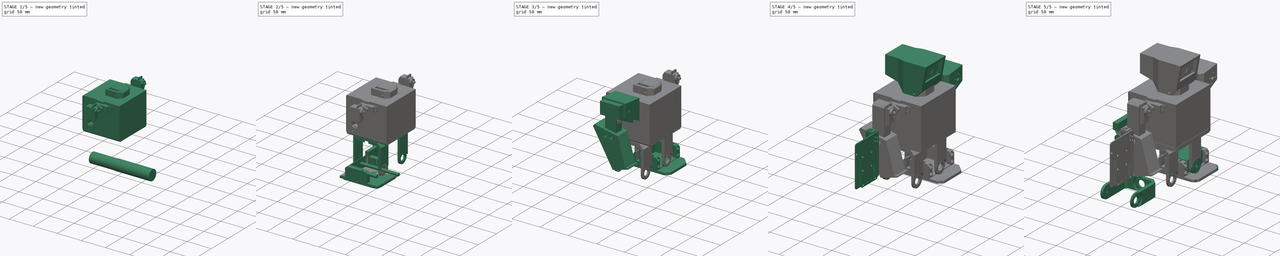
[diagram: build sequence overview — one tinted view per stage of 5, left to right]
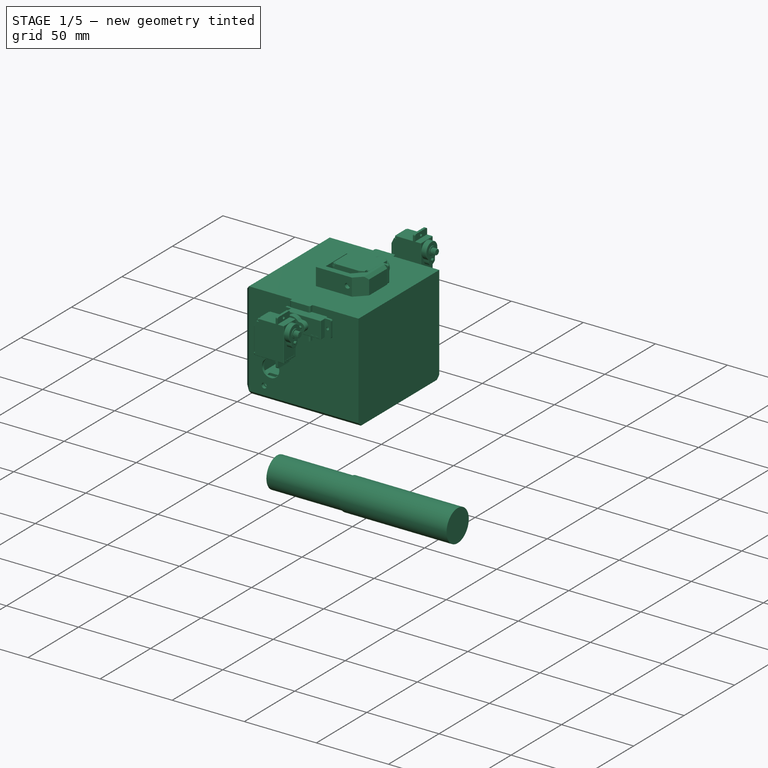
[diagram: stage 1 of 5 — iso view after this stage's code; geometry added in this stage tinted green]
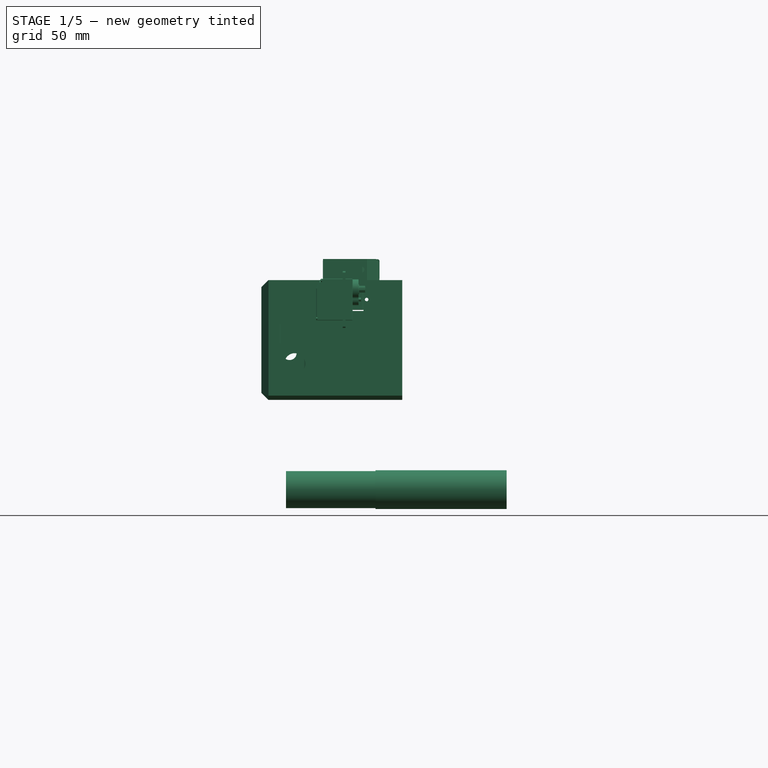
[diagram: stage 1 of 5 — front view after this stage's code; geometry added in this stage tinted green]
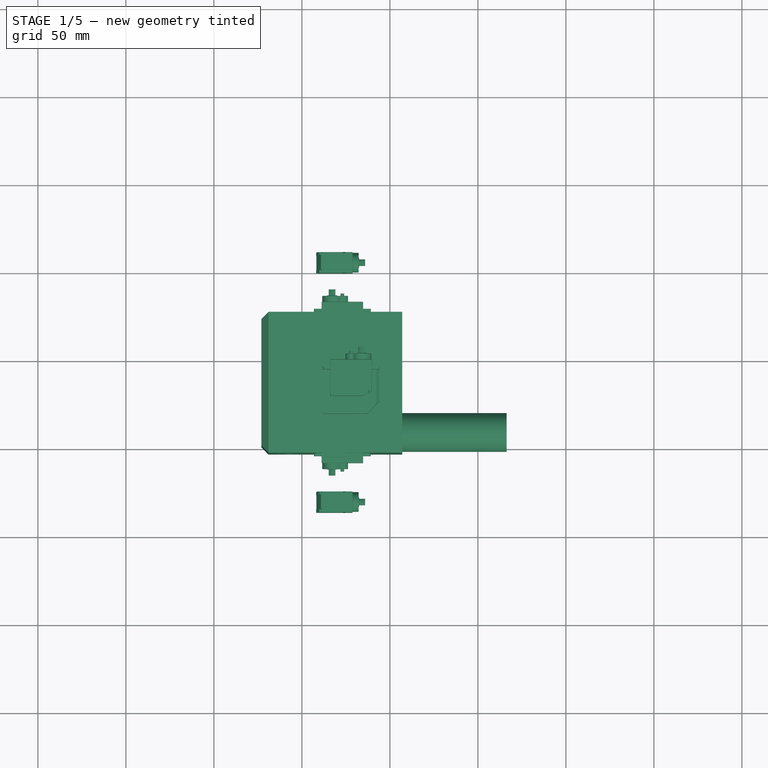
[diagram: stage 1 of 5 — top view after this stage's code; geometry added in this stage tinted green]
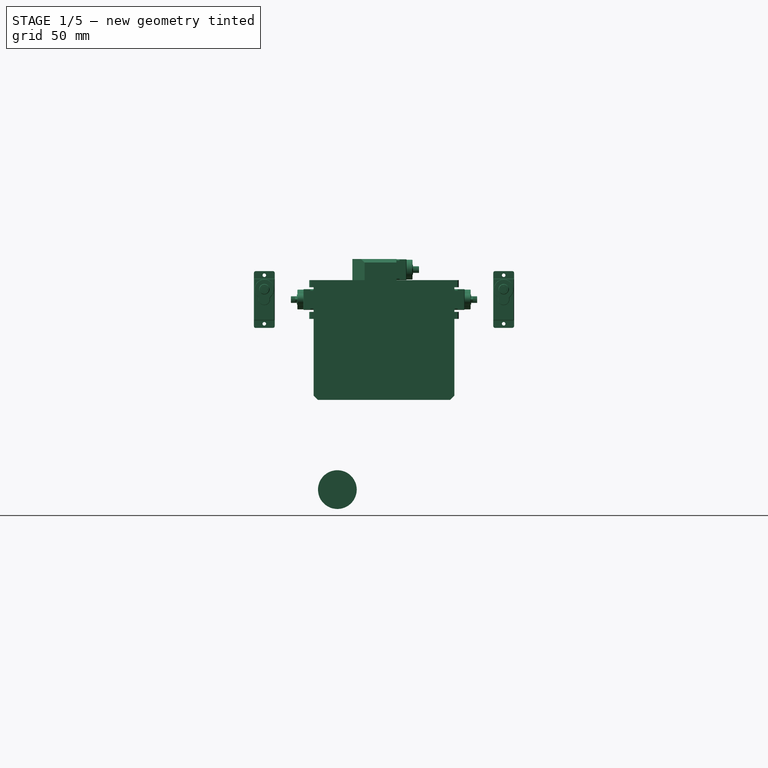
[diagram: stage 1 of 5 — right view after this stage's code; geometry added in this stage tinted green]
FCSTD DOCUMENT  (FreeCAD 0.15R4671 (Git))
Label: zowi
License: CC-BY 3.0
LicenseURL: http://creativecommons.org/licenses/by/3.0/
objects: Part::Cut×55, Part::Cylinder×53, Part::MultiFuse×42, Part::Box×38, Part::FeaturePython×21, Part::Feature×18, Part::Chamfer×14, Sketcher::SketchObject×14, Part::Mirroring×10, PartDesign::Pad×9, Part::Fillet×8, App::DocumentObjectGroup×7, PartDesign::Pocket×5, Part::Prism×4, PartDesign::Fillet×2
note: 307 computed .brp shape members not serialized (recipe doc carries the construction recipe); baked Part::Feature solids carry a one-line shape summary decoded from their .brp

FEATURE [Part::Cylinder] Cylinder002  label="Joint-D004"
  Angle = 360
  Height = 53
  Placement = pos=(-9,9.5,12) rot=(0,1,0;1.5708rad)
  Radius = 10.5
FEATURE [Part::Cylinder] Cylinder006  label="Joint-D008"
  Angle = 360
  Height = 74.5
  Placement = pos=(41.8,9.5,12) rot=(0,1,0;1.5708rad)
  Radius = 11
FEATURE [Part::Box] Box019  label="Cube019"
  Height = 66
  Length = 76
  Placement = pos=(-21,-2,87) rot=(0,0,1;0rad)
  Width = 76
FEATURE [Part::Fillet] Fillet006
  Base = -> Box019
  Edges = 8 edges r=3.5: [Edge1,Edge2,Edge3,Edge5,Edge6,Edge7,Edge10,Edge12]
  Placement = pos=(0,0,-24) rot=(0,0,1;0rad)
FEATURE [Part::Cylinder] Cylinder014  label="Cylinder002"
  Angle = 360
  Height = 31
  Placement = pos=(-8.5,11,71.5) rot=(1,0,0;1.5708rad)
  Radius = 1.75
FEATURE [Part::Cylinder] Cylinder015  label="Cylinder003"
  Angle = 360
  Height = 31
  Placement = pos=(-8.5,80,71.5) rot=(1,0,0;1.5708rad)
  Radius = 1.75
FEATURE [Part::Cylinder] Cylinder016  label="Cylinder004"
  Angle = 360
  Height = 31
  Placement = pos=(-4,11,83.5) rot=(1,0,0;1.5708rad)
  Radius = 6
FEATURE [Part::Box] Box020  label="Cube020"
  Height = 11
  Length = 8
  Placement = pos=(-13.5,-13,95) rot=(0,0,1;0rad)
  Width = 24
FEATURE [Part::Cylinder] Cylinder026  label="Cylinder029"
  Angle = 360
  Height = 31
  Placement = pos=(-7,80,89.6) rot=(1,0,0;1.5708rad)
  Radius = 4
FEATURE [Part::Box] Box047  label="Cube046"
  Height = 49
  Length = 17
  Placement = pos=(-14,-2.5,75) rot=(0,0,1;0rad)
  Width = 77
FEATURE [Part::Fillet] Fillet018014
  Base = -> Box047
  Edges = 12 edges r=2: [Edge1,Edge2,Edge3,Edge4,Edge5,Edge6,Edge7,Edge8,Edge9,Edge10,Edge11,Edge12]
FEATURE [Part::Feature] Fillet018013001  label="Fillet018015"
  shape: bbox 80 x 80 x 55 mm, 127 faces (baked)
FEATURE [Part::Chamfer] Chamfer101
  Base = -> Fillet018013001
  Edges = 5 edges: [Edge1 r=4,Edge3 r=4,Edge5 r=4,Edge7 r=2.4,Edge13 r=2.4]
FEATURE [Part::Chamfer] Chamfer102  label="chassis-src"
  Base = -> Chamfer101
  Edges = 3 edges: [Edge98 r=18,Edge124 r=1,Edge147 r=18]
FEATURE [Part::Box] Box048  label="Cube047"
  Height = 63
  Length = 80
  Placement = pos=(-23,-4,68) rot=(0,0,1;0rad)
  Width = 80
FEATURE [Part::Chamfer] Chamfer103
  Base = -> Box048
  Edges = 3 edges r=4: [Edge1,Edge2,Edge3]
FEATURE [Part::Cut] Cut081
  Base = -> Chamfer103
  Tool = -> Fillet006
FEATURE [Part::MultiFuse] Fusion044
  Shapes = -> [Fillet018014,Box020,Cylinder026,Cylinder016,Cylinder015,Cylinder014]
FEATURE [Part::Cut] Cut082
  Base = -> Cut081
  Tool = -> Fusion044
FEATURE [Sketcher::SketchObject] Sketch009
  Placement = pos=(-40,0,0) rot=(0.57735,-0.57735,-0.57735;2.0944rad)
  sketch-geometry (19):
    g0: LineSegment StartX=-66 StartY=121.75 StartZ=0 EndX=-6 EndY=121.75 EndZ=0
    g1: LineSegment StartX=-6 StartY=121.75 StartZ=0 EndX=-6 EndY=117.5 EndZ=0
    g2: LineSegment StartX=-6 StartY=117.5 StartZ=0 EndX=-66 EndY=117.5 EndZ=0
    g3: LineSegment StartX=-66 StartY=117.5 StartZ=0 EndX=-66 EndY=121.75 EndZ=0
    g4: LineSegment StartX=-66 StartY=113.25 StartZ=0 EndX=-6 EndY=113.25 EndZ=0
    g5: LineSegment StartX=-6 StartY=113.25 StartZ=0 EndX=-6 EndY=109 EndZ=0
    g6: LineSegment StartX=-6 StartY=109 StartZ=0 EndX=-66 EndY=109 EndZ=0
    g7: LineSegment StartX=-66 StartY=109 StartZ=0 EndX=-66 EndY=113.25 EndZ=0
    g8: LineSegment StartX=-66 StartY=104.75 StartZ=0 EndX=-6 EndY=104.75 EndZ=0
    g9: LineSegment StartX=-6 StartY=104.75 StartZ=0 EndX=-6 EndY=100.5 EndZ=0
    g10: LineSegment StartX=-6 StartY=100.5 StartZ=0 EndX=-66 EndY=100.5 EndZ=0
    g11: LineSegment StartX=-66 StartY=100.5 StartZ=0 EndX=-66 EndY=104.75 EndZ=0
    g12: LineSegment StartX=-66 StartY=96.25 StartZ=0 EndX=-6 EndY=96.25 EndZ=0
    g13: LineSegment StartX=-6 StartY=96.25 StartZ=0 EndX=-6 EndY=92 EndZ=0
    g14: LineSegment StartX=-6 StartY=92 StartZ=0 EndX=-66 EndY=92 EndZ=0
    g15: LineSegment StartX=-66 StartY=92 StartZ=0 EndX=-66 EndY=96.25 EndZ=0
    g16: LineSegment [constr] StartX=-66 StartY=117.5 StartZ=0 EndX=-66 EndY=113.25 EndZ=0
    g17: LineSegment [constr] StartX=-66 StartY=109 StartZ=0 EndX=-66 EndY=104.75 EndZ=0
    g18: LineSegment [constr] StartX=-66 StartY=100.5 StartZ=0 EndX=-66 EndY=96.25 EndZ=0
  constraints (54):
    c: Coincident(g0,g1)
    c: Coincident(g1,g2)
    c: Coincident(g2,g3)
    c: Coincident(g3,g0)
    c: Horizontal(g0)
    c: Horizontal(g2)
    c: Vertical(g1)
    c: Vertical(g3)
    c: Coincident(g4,g5)
    c: Coincident(g5,g6)
    c: Coincident(g6,g7)
    c: Coincident(g7,g4)
    c: Horizontal(g4)
    c: Horizontal(g6)
    c: Vertical(g5)
    c: Vertical(g7)
    c: Coincident(g8,g9)
    c: Coincident(g9,g10)
    c: Coincident(g10,g11)
    c: Coincident(g11,g8)
    c: Horizontal(g8)
    c: Horizontal(g10)
    c: Vertical(g9)
    c: Vertical(g11)
    c: Coincident(g12,g13)
    c: Coincident(g13,g14)
    c: Coincident(g14,g15)
    c: Coincident(g15,g12)
    c: Horizontal(g12)
    c: Horizontal(g14)
    c: Vertical(g13)
    c: Vertical(g15)
    c: Coincident(g16,g2)
    c: Coincident(g16,g4)
    c: Coincident(g17,g6)
    c: Coincident(g17,g8)
    c: Coincident(g18,g10)
    c: Coincident(g18,g12)
    c: Vertical(g18)
    c: Vertical(g17)
    c: Vertical(g16)
    c: Equal(g3,g16)
    c: Equal(g16,g7)
    c: Equal(g7,g17)
    c: Equal(g17,g11)
    c: Equal(g11,g18)
    c: Equal(g18,g15)
    c: Distance(g3) = 4.25
    c: Distance(g0) = 60
    c: DistanceY(g-1,g13) = 92
    c: Equal(g2,g6)
    c: Equal(g6,g10)
    c: Equal(g10,g14)
    c: DistanceX(g-1,g13) = -6
FEATURE [PartDesign::Pad] Pad004
  Length = 45
  Length2 = 100
  Placement = pos=(-40,0,0) rot=(0.57735,-0.57735,-0.57735;2.0944rad)
  Reversed = true
  Sketch = -> Sketch009
  Type = 0
FEATURE [Sketcher::SketchObject] Sketch011
  Placement = pos=(-0.25,-35,0) rot=(1,0,0;1.5708rad)
  sketch-geometry (7):
    g0: Circle CenterX=37 CenterY=120 CenterZ=0 NormalX=0 NormalY=0 NormalZ=1 Radius=1.2
    g1: Circle CenterX=9.5 CenterY=120 CenterZ=0 NormalX=0 NormalY=0 NormalZ=1 Radius=1.2
    g2: LineSegment StartX=35.25 StartY=126.5 StartZ=0 EndX=11.25 EndY=126.5 EndZ=0
    g3: LineSegment StartX=11.25 StartY=126.5 StartZ=0 EndX=11.25 EndY=113.5 EndZ=0
    g4: LineSegment StartX=11.25 StartY=113.5 StartZ=0 EndX=35.25 EndY=113.5 EndZ=0
    g5: LineSegment StartX=35.25 StartY=113.5 StartZ=0 EndX=35.25 EndY=126.5 EndZ=0
    g6: LineSegment [constr] StartX=9.5 StartY=120 StartZ=0 EndX=37 EndY=120 EndZ=0
  constraints (20):
    c: Coincident(g2,g3)
    c: Coincident(g3,g4)
    c: Coincident(g4,g5)
    c: Coincident(g5,g2)
    c: Horizontal(g2)
    c: Horizontal(g4)
    c: Vertical(g3)
    c: Vertical(g5)
    c: Distance(g2) = 24
    c: Distance(g5) = 13
    c: Radius(g1) = 1.2
    c: Equal(g1,g0)
    c: Coincident(g0,g6)
    c: Coincident(g1,g6)
    c: Distance(g6) = 27.5
    c: Horizontal(g6)
    c: DistanceX(g-1,g1) = 9.5
    c: DistanceY(g1) = 120
    c: DistanceY(g1,g3) = -6.5
    c: DistanceX(g1,g2) = 1.75
FEATURE [PartDesign::Pad] Pad006
  Length = 140
  Length2 = 100
  Placement = pos=(-0.25,-35,0) rot=(1,0,0;1.5708rad)
  Reversed = true
  Sketch = -> Sketch011
  Type = 0
FEATURE [Part::Box] Box049  label="Cubo"
  Height = 4
  Length = 14
  Placement = pos=(11,-6.5,109) rot=(0,0,1;0rad)
  Width = 3
FEATURE [Part::MultiFuse] Fusion048
  Shapes = -> [Cut082,Box049]
FEATURE [Part::Box] Box050  label="Cubo001"
  Height = 4
  Length = 14
  Placement = pos=(11,-6.5,127) rot=(0,0,1;0rad)
  Width = 3
FEATURE [Part::MultiFuse] Fusion049
  Shapes = -> [Fusion048,Box050]
FEATURE [Part::Box] Box051  label="Cubo002"
  Height = 4
  Length = 14
  Placement = pos=(11,75.5,127) rot=(0,0,1;0rad)
  Width = 3
FEATURE [Part::Box] Box052  label="Cubo003"
  Height = 4
  Length = 14
  Placement = pos=(11,75.5,109) rot=(0,0,1;0rad)
  Width = 3
FEATURE [Part::MultiFuse] Fusion050
  Shapes = -> [Box052,Box051,Fusion049]
FEATURE [Part::MultiFuse] Fusion051
  Shapes = -> [Pad004,Pad006]
FEATURE [Part::Cut] Cut092
  Base = -> Fusion050
  Tool = -> Fusion051
FEATURE [Part::Fillet] Fillet018013002
  Base = -> Cut092
  Edges = 8 edges r=1: [Edge2,Edge4,Edge56,Edge59,Edge207,Edge210,Edge226,Edge228]
FEATURE [Sketcher::SketchObject] Sketch013
  Placement = pos=(0,0,195) rot=(0,0,1;0rad)
  sketch-geometry (8):
    g0: LineSegment StartX=-39 StartY=19 StartZ=0 EndX=-39 EndY=23 EndZ=0
    g1: LineSegment StartX=-39 StartY=23 StartZ=0 EndX=-14 EndY=23 EndZ=0
    g2: LineSegment StartX=-14 StartY=23 StartZ=0 EndX=-14 EndY=-9 EndZ=0
    g3: LineSegment StartX=-14 StartY=-9 StartZ=0 EndX=-39 EndY=-9 EndZ=0
    g4: LineSegment StartX=-39 StartY=-9 StartZ=0 EndX=-39 EndY=-5 EndZ=0
    g5: LineSegment StartX=-39 StartY=-5 StartZ=0 EndX=-18 EndY=-5 EndZ=0
    g6: LineSegment StartX=-18 StartY=19 StartZ=0 EndX=-39 EndY=19 EndZ=0
    g7: LineSegment StartX=-18 StartY=19 StartZ=0 EndX=-18 EndY=-5 EndZ=0
  constraints (24):
    c: Vertical(g0)
    c: Coincident(g0,g1)
    c: Horizontal(g1)
    c: Coincident(g1,g2)
    c: Vertical(g2)
    c: Coincident(g2,g3)
    c: Coincident(g3,g4)
    c: Vertical(g4)
    c: Coincident(g4,g5)
    c: Horizontal(g5)
    c: Coincident(g6,g0)
    c: Horizontal(g6)
    c: Horizontal(g3)
    c: Equal(g4,g0)
    c: Distance(g0) = 4
    c: Distance(g1) = 25
    c: DistanceY(g-1,g1) = 23
    c: DistanceX(g-1,g1) = -14
    c: Distance(g2) = 32
    c: Equal(g3,g1)
    c: DistanceX(g5,g2) = 4
    c: DistanceX(g6,g1) = 4
    c: Coincident(g7,g6)
    c: Coincident(g7,g5)
FEATURE [PartDesign::Pad] Pad008
  Length = 13
  Length2 = 100
  Placement = pos=(0,0,195) rot=(0,0,1;0rad)
  Sketch = -> Sketch013
  Type = 0
FEATURE [Part::Chamfer] Chamfer106
  Base = -> Pad008
  Edges = 2 edges r=7: [Edge5,Edge20]
FEATURE [Part::Cylinder] Cylinder068  label="Cylinder094"
  Angle = 360
  Height = 20
  Placement = pos=(-33,-7,202) rot=(0,-1,0;1.5708rad)
  Radius = 1
FEATURE [Part::Cylinder] Cylinder069  label="Cylinder095"
  Angle = 360
  Height = 20
  Placement = pos=(-33,21,202) rot=(0,-1,0;1.5708rad)
  Radius = 1
FEATURE [Part::MultiFuse] Fusion052
  Placement = pos=(5,0,0) rot=(0,0,1;0rad)
  Shapes = -> [Cylinder068,Cylinder069]
FEATURE [Part::Cut] Cut093
  Base = -> Chamfer106
  Tool = -> Fusion052
FEATURE [Part::Cylinder] Cylinder070
  Angle = 360
  Height = 20
  Placement = pos=(-7,12.8,202) rot=(0,-1,0;1.5708rad)
  Radius = 1.75
FEATURE [Part::Prism] Prism
  Circumradius = 3.3
  Height = 10
  Placement = pos=(-16,12.8,202) rot=(0,-1,0;1.5708rad)
  Polygon = 6
FEATURE [Part::MultiFuse] Fusion053
  Shapes = -> [Prism,Cylinder070]
FEATURE [Part::Cut] Cut094
  Base = -> Cut093
  Placement = pos=(34,4,-65) rot=(0,0,-1;1.5708rad)
  Tool = -> Fusion053
FEATURE [Part::Box] Box053  label="Cube077"
  Height = 15
  Length = 7
  Placement = pos=(16,29,120) rot=(0,0,-1;1.5708rad)
  Width = 17
FEATURE [Part::Chamfer] Chamfer107
  Base = -> Cut094
  Edges = 1 edges r=2: [Edge4]
  Placement = pos=(-13,0,0) rot=(0,0,1;0rad)
FEATURE [Part::Cut] Cut095
  Base = -> Fillet018013002
  Tool = -> Box053
FEATURE [Part::MultiFuse] Fusion054  label="body-src"
  Shapes = -> [Cut095,Chamfer107]
FEATURE [Part::FeaturePython] Clone018  label="Clone of body-src"  # Draft clone (typed FeaturePython)
  Objects = -> [Fusion054]
  Scale = (1,1,1)
FEATURE [Part::FeaturePython] Clone019  label="Clone of chassis-src"  # Draft clone (typed FeaturePython)
  Objects = -> [Chamfer102]
  Scale = (1,1,1)
FEATURE [Part::Feature] Part__Feature  label="Emax-es08A-final"
  shape: bbox 32.2 x 12.1 x 25.4 mm, 95 faces (baked)
FEATURE [Part::Feature] Part__Feature015  label="Emax-es08A-final001"
  shape: bbox 3.784 x 3.784 x 8.4 mm, 50 faces (baked)
FEATURE [Part::Feature] Part__Feature016  label="Emax-es08A-final002"
  shape: bbox 1.8 x 1.8 x 15.3 mm, 18 faces (baked)
FEATURE [Part::Feature] Part__Feature017  label="Emax-es08A-final003"
  shape: bbox 1.8 x 1.8 x 15.3 mm, 18 faces (baked)
FEATURE [Part::Feature] Part__Feature018  label="Emax-es08A-final004"
  shape: bbox 1.8 x 1.8 x 15.3 mm, 18 faces (baked)
FEATURE [Part::Feature] Part__Feature019  label="Emax-es08A-final005"
  shape: bbox 1.8 x 1.8 x 15.3 mm, 18 faces (baked)
FEATURE [Part::MultiFuse] Fusion061  label="emax-src"
  Shapes = -> [Part__Feature,Part__Feature015,Part__Feature016,Part__Feature017,Part__Feature018,Part__Feature019]
FEATURE [App::DocumentObjectGroup] Group003  label="src"
  Group = -> [Part__Mirroring006,Part__Mirroring007,Group005,Cut100,Chamfer102,Chamfer109,Fusion054,Fusion045,Fillet018013,Chamfer110,Chamfer105,Fusion061]
FEATURE [Part::FeaturePython] Clone020  label="Clone of emax-src"  # Draft clone (typed FeaturePython)
  Objects = -> [Fusion061]
  Placement = pos=(23,71.5,120) rot=(0,0.707107,0.707107;3.14159rad)
  Scale = (1,1,1)
FEATURE [Part::FeaturePython] Clone021  label="Clone of emax-src001"  # Draft clone (typed FeaturePython)
  Objects = -> [Fusion061]
  Placement = pos=(28,38.5,137) rot=(1,0,0;4.71239rad)
  Scale = (1,1,1)
FEATURE [Part::FeaturePython] Clone022  label="Clone of emax-src002"  # Draft clone (typed FeaturePython)
  Objects = -> [Fusion061]
  Placement = pos=(23,0.5,120) rot=(0,-0.707107,0.707107;3.14159rad)
  Scale = (1,1,1)
FEATURE [Part::FeaturePython] Clone023  label="Clone of emax-src003"  # Draft clone (typed FeaturePython)
  Objects = -> [Fusion061]
  Placement = pos=(18.5,-32,120) rot=(0.707107,0,0.707107;3.14159rad)
  Scale = (1,1,1)
FEATURE [Part::FeaturePython] Clone024  label="Clone of emax-src004"  # Draft clone (typed FeaturePython)
  Objects = -> [Fusion061]
  Placement = pos=(18.5,104,120) rot=(0.707107,0,0.707107;3.14159rad)
  Scale = (1,1,1)
FEATURE [App::DocumentObjectGroup] Group017  label="assembly"
  Group = -> [Fusion043,Clone006,Clone004,Clone005,Part__Mirroring007010,Part__Mirroring007009,Part__Mirroring007008,Part__Mirroring,Part__Mirroring001,Part__Mirroring003,Part__Mirroring004,Group001,Part__Mirroring007011,Clone016,Clone017,Clone018,Clone019,Clone024,Clone023,Clone020,Clone021,Clone022]
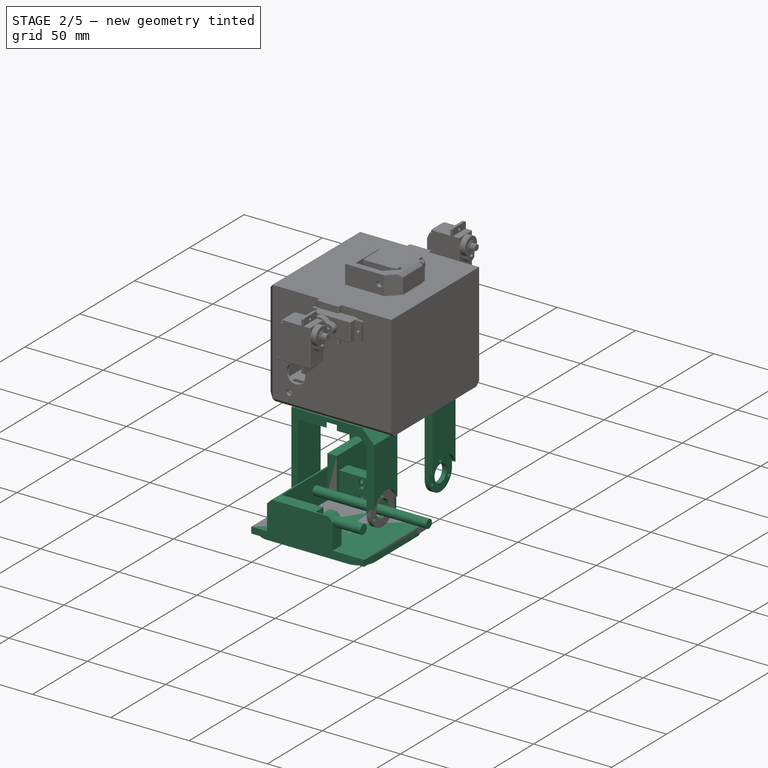
[diagram: stage 2 of 5 — iso view after this stage's code; geometry added in this stage tinted green]
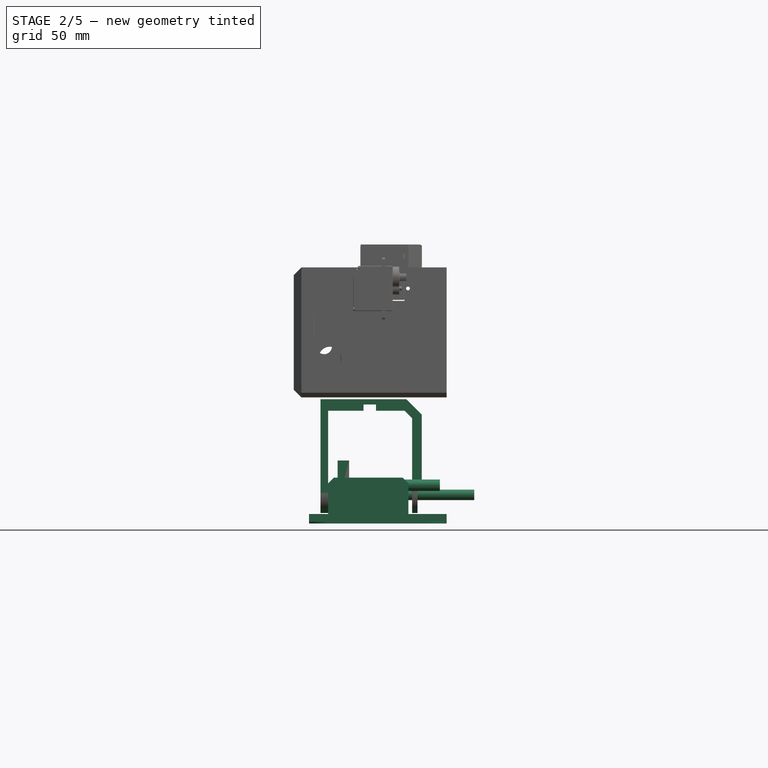
[diagram: stage 2 of 5 — front view after this stage's code; geometry added in this stage tinted green]
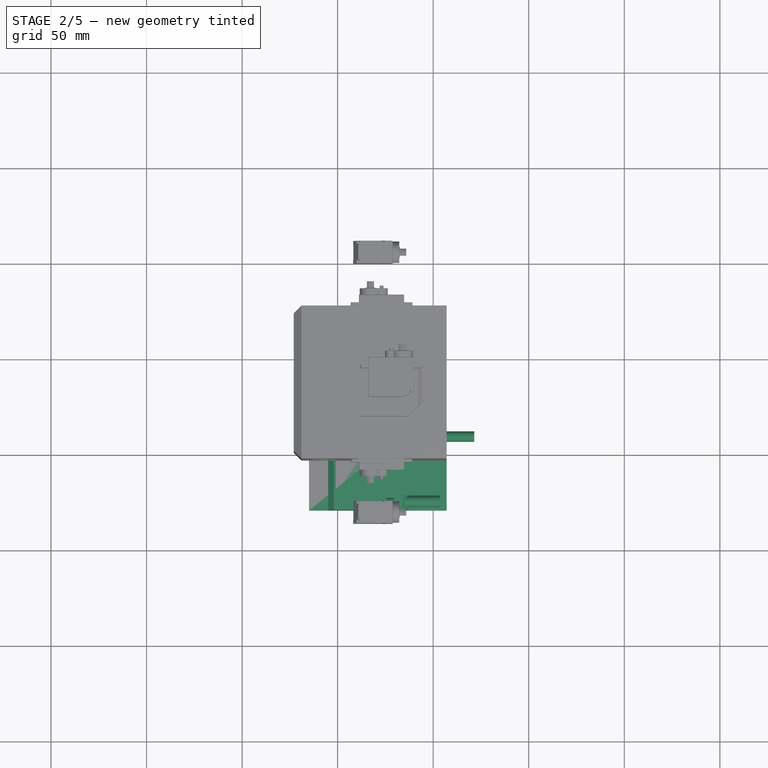
[diagram: stage 2 of 5 — top view after this stage's code; geometry added in this stage tinted green]
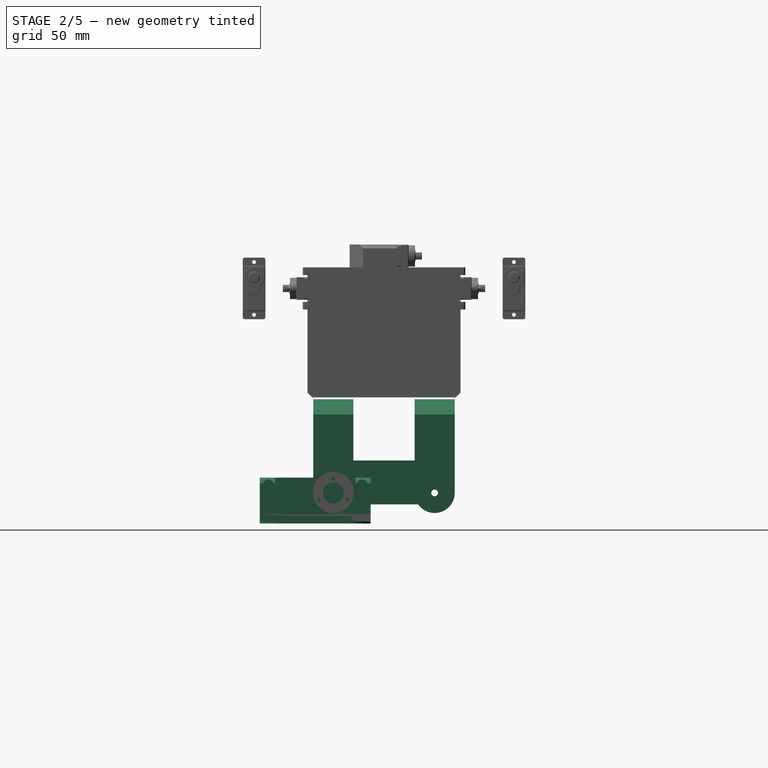
[diagram: stage 2 of 5 — right view after this stage's code; geometry added in this stage tinted green]
FEATURE [Part::Feature] Part__Feature013  label="Servo-D1"
  Placement = pos=(26.5,9.5,100.6) rot=(0,1,0;3.14159rad)
  shape: bbox 55.5 x 20 x 41.74 mm, 365 faces (baked)
FEATURE [Part::Feature] Part__Feature014  label="Servo-D2"
  Placement = pos=(0,0,13) rot=(0.57735,0.57735,0.57735;2.0944rad)
  shape: bbox 41.74 x 55.5 x 20 mm, 365 faces (baked)
FEATURE [Part::Feature] Part__Feature008  label="J1"
  Placement = pos=(-10.8,44.37,77.54) rot=(0.707107,0.707107,0;3.14159rad)
  shape: bbox 11.7 x 15.49 x 2.5 mm, 224 faces (baked)
FEATURE [Part::Feature] Part__Feature009  label="J2"
  Placement = pos=(-10.8,62.15,77.54) rot=(0.707107,0.707107,0;3.14159rad)
  shape: bbox 11.7 x 15.49 x 2.5 mm, 224 faces (baked)
FEATURE [Part::Feature] Part__Feature007  label="J4"
  Placement = pos=(-10.8,59.6199,125.78) rot=(0,0,-1;1.5708rad)
  shape: bbox 11.65 x 20.57 x 2.5 mm, 290 faces (baked)
FEATURE [Part::Feature] Part__Feature010  label="J16"
  Placement = pos=(-9.55,7.19908,100.417) rot=(0.57735,0.57735,-0.57735;2.0944rad)
  shape: bbox 2.94 x 5.43 x 7.98 mm, 414 faces, 0 solids (baked)
FEATURE [Part::Feature] Part__Feature005  label="PCB"
  Placement = pos=(-12.3914,5,75) rot=(0.57735,0.57735,0.57735;2.0944rad)
  shape: bbox 1.591 x 68.6 x 53.36 mm, 426 faces (baked)
FEATURE [Part::Feature] Part__Feature004  label="J010"
  Placement = pos=(-10.8,14.8841,83.3059) rot=(0.707107,0.707107,0;3.14159rad)
  shape: bbox 10.92 x 14.61 x 8.89 mm, 41 faces (baked)
FEATURE [Part::Feature] Part__Feature011  label="U1"
  Placement = pos=(-9.2,12.159,115.511) rot=(0.57735,-0.57735,-0.57735;2.0944rad)
  shape: bbox 2.435 x 26.9 x 13 mm, 503 faces (baked)
FEATURE [Part::Feature] Part__Feature006  label="J8"
  Placement = pos=(-10.8,37.7759,125.78) rot=(0,0,-1;1.5708rad)
  shape: bbox 11.65 x 20.57 x 2.5 mm, 290 faces (baked)
FEATURE [App::DocumentObjectGroup] Group001  label="placa"
  Group = -> [Part__Feature008,Part__Feature009,Part__Feature007,Part__Feature010,Part__Feature005,Part__Feature004,Part__Feature011,Part__Feature006]
FEATURE [Part::Box] Box  label="Cube"
  Height = 24
  Length = 72
  Placement = pos=(-15,-29,-3) rot=(0,0,1;0rad)
  Width = 58
FEATURE [Part::Box] Box001  label="Cube001"
  Height = 25
  Length = 47
  Placement = pos=(-1,-21,2) rot=(0,0,1;0rad)
  Width = 42
FEATURE [Part::Box] Box002  label="Cube002"
  Height = 38
  Length = 28
  Placement = pos=(37,-45,1) rot=(0,0,1;0rad)
  Width = 88
FEATURE [Part::Box] Box003  label="Cube003"
  Height = 38
  Length = 28
  Placement = pos=(-33,-45,1) rot=(0,0,1;0rad)
  Width = 88
FEATURE [Part::Cut] Cut
  Base = -> Box
  Tool = -> Box001
FEATURE [Part::Cut] Cut001
  Base = -> Cut
  Tool = -> Box002
FEATURE [Part::Cut] Cut002
  Base = -> Cut001
  Tool = -> Box003
FEATURE [Part::Box] Box004  label="Cube004"
  Height = 60
  Length = 44
  Placement = pos=(-5,-24,-5) rot=(0,0,1;0rad)
  Width = 61
FEATURE [Part::Cylinder] Cylinder003  label="Joint-D005"
  Angle = 360
  Height = 74.5
  Placement = pos=(-22,9.5,12) rot=(0,1,0;1.5708rad)
  Radius = 1.75
FEATURE [Part::Fillet] Fillet
  Base = -> Cut002
  Edges = 4 edges r=10: [Edge1,Edge3,Edge5,Edge14]
FEATURE [Part::MultiFuse] Fusion
  Shapes = -> [Cylinder002]
FEATURE [Part::Cylinder] Cylinder004  label="Joint-D006"
  Angle = 360
  Height = 74.5
  Placement = pos=(16,9.5,12) rot=(0,1,0;1.5708rad)
  Radius = 5.5
FEATURE [Part::Cut] Cut003
  Base = -> Fusion
  Tool = -> Box004
FEATURE [Part::Cylinder] Cylinder005  label="Joint-D007"
  Angle = 360
  Height = 74.5
  Placement = pos=(-51,9.5,12) rot=(0,1,0;1.5708rad)
  Radius = 1.75
FEATURE [Part::Cut] Cut004
  Base = -> Cut003
  Tool = -> Cylinder004
FEATURE [Part::Cut] Cut005
  Base = -> Cut004
  Tool = -> Cylinder005
FEATURE [Part::Cut] Cut006
  Base = -> Cut005
  Tool = -> Cylinder006
FEATURE [Part::Cylinder] Cylinder007  label="Joint-D009"
  Angle = 360
  Height = 23.5
  Placement = pos=(16.8,9.5,58.3) rot=(0,1,0;3.14159rad)
  Radius = 11
FEATURE [Part::Cylinder] Cylinder008  label="Joint-D010"
  Angle = 360
  Height = 21.5
  Placement = pos=(16,-24.5,7) rot=(0,1,0;1.5708rad)
  Radius = 1.75
FEATURE [Part::Cylinder] Cylinder009  label="Joint-D011"
  Angle = 360
  Height = 21.5
  Placement = pos=(32,-24.5,7) rot=(0,1,0;1.5708rad)
  Radius = 3
FEATURE [Part::MultiFuse] Fusion002
  Placement = pos=(0,0,10) rot=(0,0,1;0rad)
  Shapes = -> [Cylinder009,Cylinder008]
FEATURE [Part::MultiFuse] Fusion003
  Placement = pos=(0,49,0) rot=(0,0,1;0rad)
  Shapes = -> [Cylinder009,Cylinder008]
FEATURE [Part::MultiFuse] Fusion004
  Placement = pos=(0,49,10) rot=(0,0,1;0rad)
  Shapes = -> [Cylinder009,Cylinder008]
FEATURE [Part::Box] Box006  label="Cube006"
  Height = 21
  Length = 4
  Placement = pos=(25.5,-28,2) rot=(0,0,1;0rad)
  Width = 56
FEATURE [Part::Cylinder] Cylinder010  label="Joint-D012"
  Angle = 360
  Height = 74.5
  Placement = pos=(17,9.5,12) rot=(0,0,1;0rad)
  Radius = 5.5
FEATURE [Part::Box] Box007  label="Cube007"
  Height = 6
  Length = 3
  Placement = pos=(18.5,-28,4) rot=(0,0,1;0rad)
  Width = 56
FEATURE [Part::Box] Box008  label="Cube008"
  Height = 6
  Length = 3
  Placement = pos=(18.5,-28,14) rot=(0,0,1;0rad)
  Width = 56
FEATURE [Part::Cylinder] Cylinder011  label="Joint-D013"
  Angle = 360
  Height = 74.5
  Placement = pos=(-3,9.5,12) rot=(0,1,0;1.5708rad)
  Radius = 2.75
FEATURE [Part::Cylinder] Cylinder021  label="Joint-D014"
  Angle = 360
  Height = 52.5
  Placement = pos=(19,9.5,20.35) rot=(0,1,0;1.5708rad)
  Radius = 1
FEATURE [Part::Cylinder] Cylinder022  label="Joint-D015"
  Angle = 360
  Height = 52.5
  Placement = pos=(19,2,9.5) rot=(0,1,0;1.5708rad)
  Radius = 1
FEATURE [Part::Cylinder] Cylinder023  label="Joint-D016"
  Angle = 360
  Height = 52.5
  Placement = pos=(19,17,9.5) rot=(0,1,0;1.5708rad)
  Radius = 1
FEATURE [Part::MultiFuse] Fusion017
  Placement = pos=(0,0,-1) rot=(0,0,1;0rad)
  Shapes = -> [Cylinder022,Cylinder021,Cylinder023]
FEATURE [Part::MultiFuse] Fusion018
  Placement = pos=(4,0,101) rot=(0,1,0;1.5708rad)
  Shapes = -> [Cylinder022,Cylinder021,Cylinder023]
FEATURE [Part::Chamfer] Chamfer
  Base = -> Fillet
  Edges = 3 edges r=3: [Edge18,Edge33,Edge37]
FEATURE [Part::Cut] Cut008
  Base = -> Chamfer
  Tool = -> Cylinder003
FEATURE [Part::Cut] Cut010
  Base = -> Cut008
  Tool = -> Box006
FEATURE [Part::Cut] Cut011
  Base = -> Cut010
  Tool = -> Box008
FEATURE [Part::Cut] Cut012
  Base = -> Cut011
  Tool = -> Box007
FEATURE [Part::Cut] Cut013
  Base = -> Cut012
  Tool = -> Fusion004
FEATURE [Part::Cut] Cut014
  Base = -> Cut013
  Tool = -> Fusion003
FEATURE [Part::Box] Box024  label="Cube024"
  Height = 23
  Length = 6
  Placement = pos=(0,19,7) rot=(0,0,1;0rad)
  Width = 36
FEATURE [Part::Cut] Cut044
  Base = -> Cut006
  Tool = -> Box004
FEATURE [Part::Cut] Cut045
  Base = -> Cut044
  Tool = -> Cylinder007
FEATURE [Part::Cut] Cut046
  Base = -> Cut045
  Tool = -> Fusion018
FEATURE [Part::Cut] Cut047
  Base = -> Cut046
  Tool = -> Fusion017
FEATURE [Part::Cut] Cut048
  Base = -> Cut047
  Placement = pos=(0,0,1) rot=(0,0,1;0rad)
  Tool = -> Cylinder010
FEATURE [Part::Chamfer] Chamfer001
  Base = -> Cut048
  Edges = 1 edges r=4: [Edge61]
FEATURE [Part::Chamfer] Chamfer002  label="pata-D"
  Base = -> Chamfer001
  Edges = 1 edges r=8: [Edge58]
FEATURE [Part::Mirroring] Part__Mirroring007  label="pata-I"
  Base = (17.5,3.8147e-06,32.25)
  Normal = (0,1,-1.19209e-07)
  Placement = pos=(0,72,0) rot=(0,0,1;0rad)
  Source = -> Chamfer002
FEATURE [Part::Box] Box056  label="Cubo006"
  Height = 4
  Length = 72
  Placement = pos=(-15,-29,-2) rot=(0,0,1;0rad)
  Width = 58
FEATURE [Part::FeaturePython] Clone016  label="Clone of pata-D"  # Draft clone (typed FeaturePython)
  Objects = -> [Chamfer002]
  Scale = (1,1,1)
FEATURE [Part::FeaturePython] Clone017  label="Clone of pata-I"  # Draft clone (typed FeaturePython)
  Objects = -> [Part__Mirroring007]
  Placement = pos=(0,72,0) rot=(0,0,1;0rad)
  Scale = (1,1,1)
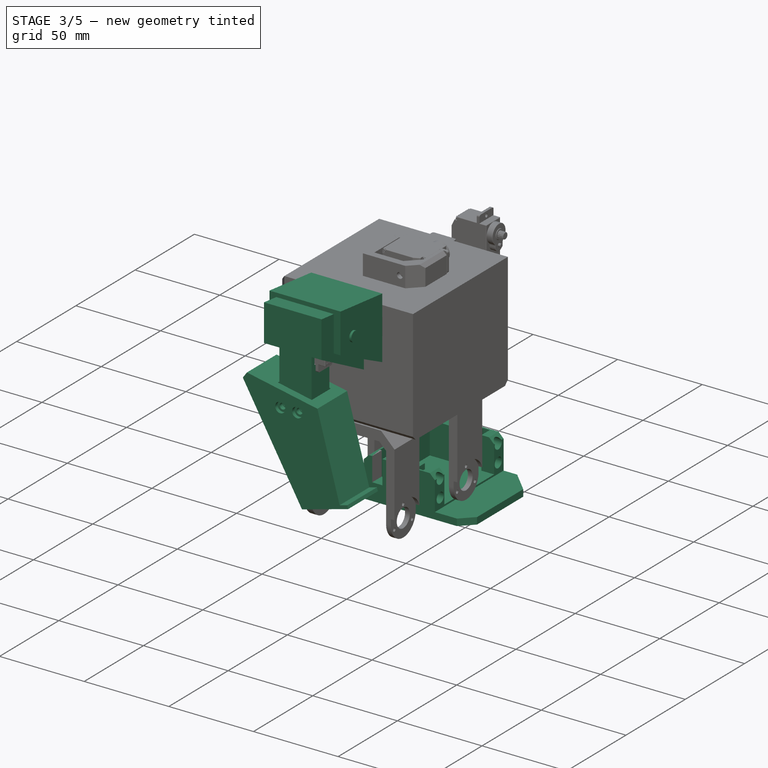
[diagram: stage 3 of 5 — iso view after this stage's code; geometry added in this stage tinted green]
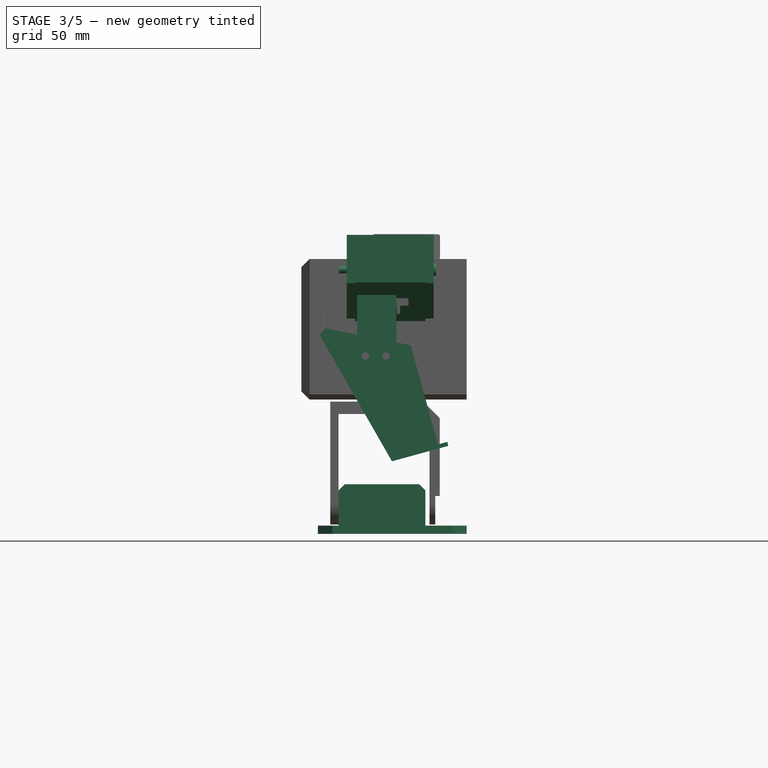
[diagram: stage 3 of 5 — front view after this stage's code; geometry added in this stage tinted green]
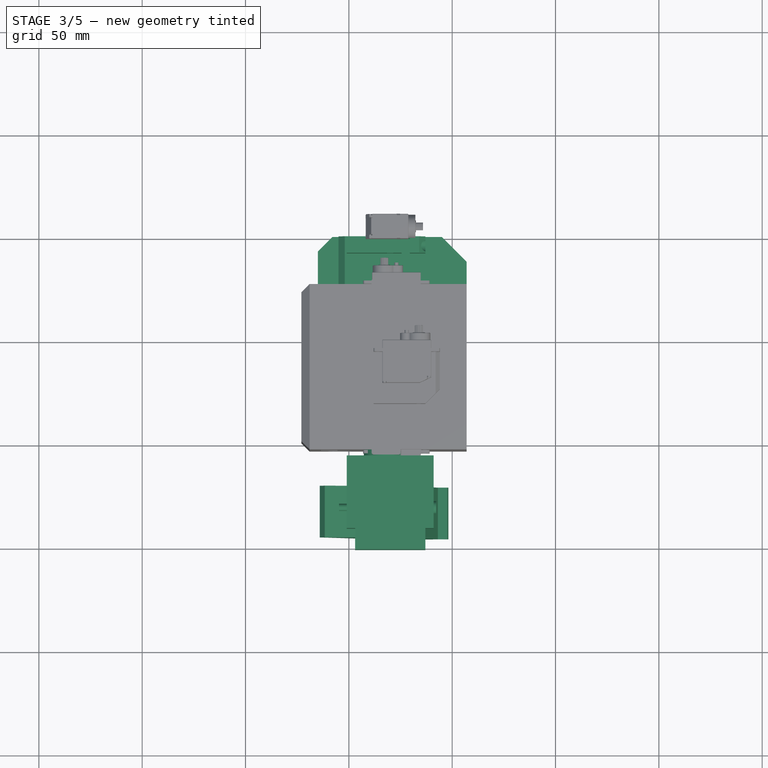
[diagram: stage 3 of 5 — top view after this stage's code; geometry added in this stage tinted green]
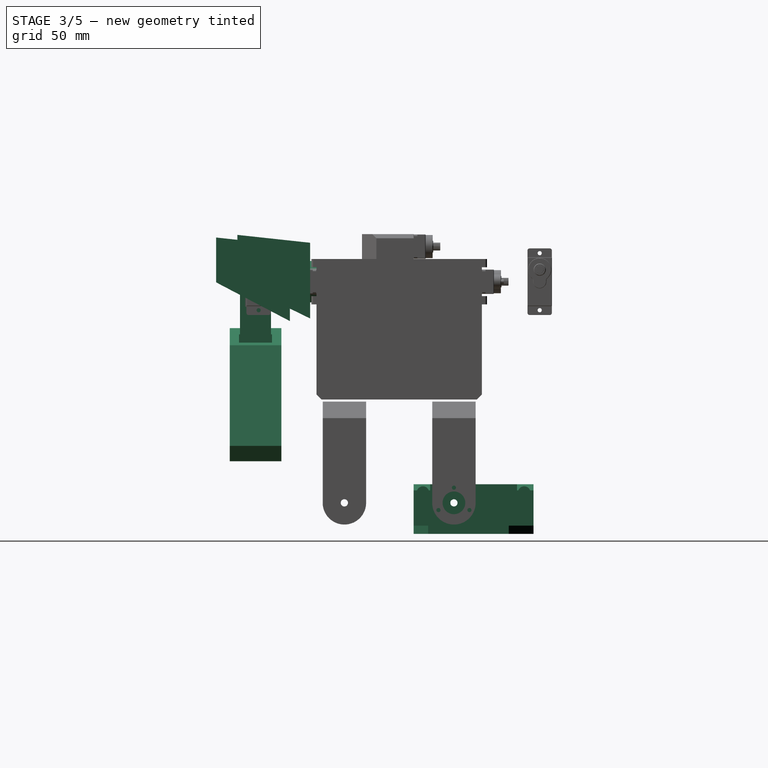
[diagram: stage 3 of 5 — right view after this stage's code; geometry added in this stage tinted green]
FEATURE [Part::MultiFuse] Fusion001
  Shapes = -> [Cylinder009,Cylinder008]
FEATURE [Part::Cut] Cut015
  Base = -> Cut014
  Tool = -> Fusion002
FEATURE [Part::Cut] Cut016
  Base = -> Cut015
  Tool = -> Fusion001
FEATURE [Part::Cut] Cut017  label="pie"
  Base = -> Cut016
  Tool = -> Cylinder011
FEATURE [Part::Cut] Cut039  label="pie-D"
  Base = -> Cut017
  Placement = pos=(0,0,1) rot=(0,0,1;0rad)
  Tool = -> Box024
FEATURE [Sketcher::SketchObject] Sketch010
  Placement = pos=(-1,0,0) rot=(0.57735,0.57735,0.57735;2.0944rad)
  sketch-geometry (4):
    g0: LineSegment StartX=-7.05302 StartY=102.221 StartZ=0 EndX=-7.05302 EndY=138.84 EndZ=0
    g1: LineSegment StartX=-7.05302 StartY=138.84 StartZ=0 EndX=-42.2607 EndY=142.654 EndZ=0
    g2: LineSegment StartX=-42.2607 StartY=142.654 StartZ=0 EndX=-42.2607 EndY=119.265 EndZ=0
    g3: LineSegment StartX=-42.2607 StartY=119.265 StartZ=0 EndX=-7.05302 EndY=102.221 EndZ=0
  constraints (6):
    c: Coincident(g0,g1)
    c: Coincident(g1,g2)
    c: Coincident(g2,g3)
    c: Coincident(g0,g3)
    c: Vertical(g0)
    c: Vertical(g2)
FEATURE [PartDesign::Pad] Pad005
  Length = 42
  Length2 = 100
  Placement = pos=(-1,0,0) rot=(0.57735,0.57735,0.57735;2.0944rad)
  Sketch = -> Sketch010
  Type = 0
FEATURE [Sketcher::SketchObject] Sketch012
  Placement = pos=(3,-12,-1) rot=(0.57735,0.57735,0.57735;2.0944rad)
  sketch-geometry (4):
    g0: LineSegment StartX=-4.88207 StartY=101.941 StartZ=0 EndX=-4.88207 EndY=138.56 EndZ=0
    g1: LineSegment StartX=-4.88207 StartY=138.56 StartZ=0 EndX=-40.5711 EndY=142.374 EndZ=0
    g2: LineSegment StartX=-40.5711 StartY=142.374 StartZ=0 EndX=-40.5711 EndY=120.688 EndZ=0
    g3: LineSegment StartX=-40.5711 StartY=120.688 StartZ=0 EndX=-4.88207 EndY=101.941 EndZ=0
  constraints (6):
    c: Coincident(g0,g1)
    c: Coincident(g1,g2)
    c: Coincident(g2,g3)
    c: Coincident(g0,g3)
    c: Vertical(g0)
    c: Vertical(g2)
FEATURE [PartDesign::Pad] Pad007
  Length = 34
  Length2 = 100
  Placement = pos=(3,-12,-1) rot=(0.57735,0.57735,0.57735;2.0944rad)
  Sketch = -> Sketch012
  Type = 0
FEATURE [Part::Cylinder] Cylinder056  label="Cilindro"
  Angle = 360
  Height = 10
  Placement = pos=(17.25,-4,120) rot=(1,0,0;1.5708rad)
  Radius = 10
FEATURE [Part::Cylinder] Cylinder057  label="Cilindro001"
  Angle = 360
  Height = 13
  Placement = pos=(17.25,-6,120) rot=(1,0,0;1.5708rad)
  Radius = 3
FEATURE [Part::Cylinder] Cylinder058  label="Cilindro002"
  Angle = 360
  Height = 22
  Placement = pos=(20.25,-32,125.75) rot=(0,1,0;1.5708rad)
  Radius = 3
FEATURE [Part::Cylinder] Cylinder063  label="Cilindro007"
  Angle = 360
  Height = 22
  Placement = pos=(20.25,-34,132.75) rot=(0,1,0;1.5708rad)
  Radius = 1.25
FEATURE [Part::Cylinder] Cylinder064  label="Cilindro008"
  Angle = 360
  Height = 22
  Placement = pos=(20.25,-30,118.75) rot=(0,1,0;1.5708rad)
  Radius = 1.25
FEATURE [Part::Cylinder] Cylinder065  label="Cilindro009"
  Angle = 360
  Height = 22
  Placement = pos=(20.25,-38,124.25) rot=(0,1,0;1.5708rad)
  Radius = 1.25
FEATURE [Part::Cylinder] Cylinder066  label="Cilindro010"
  Angle = 360
  Height = 22
  Placement = pos=(20.25,-26,127.25) rot=(0,1,0;1.5708rad)
  Radius = 1.25
FEATURE [Part::MultiFuse] Fusion047
  Placement = pos=(114.108,21,33.6462) rot=(0.280624,-0.280624,-0.917878;1.65638rad)
  Shapes = -> [Cylinder063,Cylinder065,Cylinder066,Cylinder064]
FEATURE [Part::Cylinder] Cylinder067  label="Cilindro011"
  Angle = 360
  Height = 22
  Placement = pos=(-4.75,-32,125.75) rot=(0,1,0;1.5708rad)
  Radius = 1.75
FEATURE [Part::Box] Box054  label="Cubo004"
  Height = 56
  Length = 19
  Placement = pos=(4,98,80) rot=(0,0,1;0rad)
  Width = 15
FEATURE [Sketcher::SketchObject] Sketch014
  Placement = pos=(0,93,0) rot=(0,0.707107,0.707107;3.14159rad)
  sketch-geometry (6):
    g0: LineSegment StartX=-43.0872 StartY=41.2652 StartZ=0 EndX=-29.9563 EndY=89.2458 EndZ=0
    g1: LineSegment StartX=-29.9563 StartY=89.2458 StartZ=0 EndX=16.5937 EndY=98.4884 EndZ=0
    g2: LineSegment StartX=16.5937 StartY=98.4884 StartZ=0 EndX=-20.8504 EndY=33.1061 EndZ=0
    g3: LineSegment StartX=-20.8504 StartY=33.1061 StartZ=0 EndX=-48.138 EndY=40.5739 EndZ=0
    g4: LineSegment StartX=-48.138 StartY=40.5739 StartZ=0 EndX=-47.6101 EndY=42.503 EndZ=0
    g5: LineSegment StartX=-47.6101 StartY=42.503 StartZ=0 EndX=-43.0872 EndY=41.2652 EndZ=0
  constraints (10):
    c: Coincident(g0,g1)
    c: Coincident(g1,g2)
    c: Coincident(g2,g3)
    c: Perpendicular(g3,g0)
    c: Coincident(g4,g5)
    c: Coincident(g0,g5)
    c: Coincident(g3,g4)
    c: Parallel(g5,g3)
    c: Perpendicular(g3,g4)
    c: Distance(g4) = 2
FEATURE [PartDesign::Pad] Pad009
  Length = 25
  Length2 = 100
  Placement = pos=(0,93,0) rot=(0,0.707107,0.707107;3.14159rad)
  Sketch = -> Sketch014
  Type = 0
FEATURE [Part::Box] Box055  label="Cubo005"
  Height = 56
  Length = 20
  Placement = pos=(3.5,97.5,79.5) rot=(0,0,1;0rad)
  Width = 16
FEATURE [Part::Cut] Cut096
  Base = -> Pad009
  Tool = -> Box055
FEATURE [Part::Cylinder] Cylinder071  label="Cilindro012"
  Angle = 360
  Height = 32
  Placement = pos=(8,90,84) rot=(-1,0,0;1.5708rad)
  Radius = 1.75
FEATURE [Part::Cylinder] Cylinder072  label="Cilindro013"
  Angle = 360
  Height = 32
  Placement = pos=(18,90,84) rot=(-1,0,0;1.5708rad)
  Radius = 1.75
FEATURE [Part::MultiFuse] Fusion055
  Shapes = -> [Cylinder072,Cylinder071]
FEATURE [Part::Cut] Cut097
  Base = -> Cut096
  Tool = -> Fusion055
FEATURE [Part::Cylinder] Cylinder073  label="Cilindro014"
  Angle = 360
  Height = 32
  Placement = pos=(8,90,84) rot=(-1,0,0;1.5708rad)
  Radius = 1.75
FEATURE [Part::Cylinder] Cylinder074  label="Cilindro015"
  Angle = 360
  Height = 32
  Placement = pos=(18,90,84) rot=(-1,0,0;1.5708rad)
  Radius = 1.75
FEATURE [Part::MultiFuse] Fusion056
  Shapes = -> [Cylinder074,Cylinder073]
FEATURE [Part::Cut] Cut098
  Base = -> Box054
  Tool = -> Fusion056
FEATURE [Sketcher::SketchObject] Sketch015
  Placement = pos=(38,-16,143.25) rot=(0,1,0;1.5708rad)
  sketch-geometry (7):
    g0: Circle CenterX=37 CenterY=120 CenterZ=0 NormalX=0 NormalY=0 NormalZ=1 Radius=1
    g1: Circle CenterX=9.5 CenterY=120 CenterZ=0 NormalX=0 NormalY=0 NormalZ=1 Radius=1
    g2: LineSegment StartX=35.25 StartY=126.5 StartZ=0 EndX=11.25 EndY=126.5 EndZ=0
    g3: LineSegment StartX=11.25 StartY=126.5 StartZ=0 EndX=11.25 EndY=113.5 EndZ=0
    g4: LineSegment StartX=11.25 StartY=113.5 StartZ=0 EndX=35.25 EndY=113.5 EndZ=0
    g5: LineSegment StartX=35.25 StartY=113.5 StartZ=0 EndX=35.25 EndY=126.5 EndZ=0
    g6: LineSegment [constr] StartX=9.5 StartY=120 StartZ=0 EndX=37 EndY=120 EndZ=0
  constraints (20):
    c: Coincident(g2,g3)
    c: Coincident(g3,g4)
    c: Coincident(g4,g5)
    c: Coincident(g5,g2)
    c: Horizontal(g2)
    c: Horizontal(g4)
    c: Vertical(g3)
    c: Vertical(g5)
    c: Distance(g2) = 24
    c: Distance(g5) = 13
    c: Radius(g1) = 1
    c: Equal(g1,g0)
    c: Coincident(g0,g6)
    c: Coincident(g1,g6)
    c: Distance(g6) = 27.5
    c: Horizontal(g6)
    c: DistanceX(g-1,g1) = 9.5
    c: DistanceY(g1) = 120
    c: DistanceY(g1,g3) = -6.5
    c: DistanceX(g1,g2) = 1.75
FEATURE [PartDesign::Pad] Pad010
  Length = 30
  Length2 = 100
  Placement = pos=(38,-16,143.25) rot=(0,1,0;1.5708rad)
  Reversed = true
  Sketch = -> Sketch015
  Type = 0
FEATURE [Part::Cut] Cut099
  Base = -> Cut098
  Tool = -> Pad010
FEATURE [Part::Chamfer] Chamfer108
  Base = -> Cut099
  Edges = 1 edges r=3: [Edge14]
FEATURE [Part::Cylinder] Cylinder075  label="Cilindro016"
  Angle = 360
  Height = 32
  Placement = pos=(-5,104,125.85) rot=(-0.57735,0.57735,-0.57735;2.0944rad)
  Radius = 1.75
FEATURE [Part::Prism] Prism001  label="Prisma"
  Circumradius = 3.3
  Height = 10
  Placement = pos=(6,104,125.85) rot=(-0.57735,0.57735,-0.57735;2.0944rad)
  Polygon = 6
FEATURE [Part::MultiFuse] Fusion057
  Shapes = -> [Prism001,Cylinder075]
FEATURE [Part::Cut] Cut100  label="arm-src"
  Base = -> Chamfer108
  Tool = -> Fusion057
FEATURE [Part::Prism] Prism002  label="Prisma001"
  Circumradius = 3.3
  Height = 10
  Placement = pos=(18,85,84) rot=(-1,0,0;1.5708rad)
  Polygon = 6
FEATURE [Part::Cylinder] Cylinder076  label="Cilindro017"
  Angle = 360
  Height = 32
  Placement = pos=(18,116,84) rot=(-1,0,0;1.5708rad)
  Radius = 3
FEATURE [Part::Prism] Prism003  label="Prisma002"
  Circumradius = 3.3
  Height = 10
  Placement = pos=(8,85,84) rot=(-1,0,0;1.5708rad)
  Polygon = 6
FEATURE [Part::MultiFuse] Fusion058
  Shapes = -> [Prism003,Prism002]
FEATURE [Part::Cut] Cut101
  Base = -> Cut097
  Tool = -> Fusion058
FEATURE [Part::Cylinder] Cylinder077  label="Cilindro018"
  Angle = 360
  Height = 32
  Placement = pos=(8,116,84) rot=(-1,0,0;1.5708rad)
  Radius = 3
FEATURE [Part::MultiFuse] Fusion059
  Shapes = -> [Cylinder076,Cylinder077]
FEATURE [Part::Cut] Cut102
  Base = -> Cut101
  Tool = -> Fusion059
FEATURE [Part::Chamfer] Chamfer109  label="hand-src"
  Base = -> Cut102
  Edges = 1 edges r=5: [Edge10]
FEATURE [Part::FeaturePython] Clone012  label="Clone of Cut100"  # Draft clone (typed FeaturePython)
  Objects = -> [Cut100]
  Scale = (1,1,1)
FEATURE [Part::FeaturePython] Clone013  label="Clone of Chamfer109"  # Draft clone (typed FeaturePython)
  Objects = -> [Chamfer109]
  Scale = (1,1,1)
FEATURE [Part::Mirroring] Part__Mirroring007009  label="Clone of Cut100 (Mirror #11)"
  Base = (0,0,0)
  Normal = (0,1,0)
  Placement = pos=(0,72,0) rot=(0,0,1;0rad)
  Source = -> Clone012
FEATURE [Part::Mirroring] Part__Mirroring007010  label="Clone of Chamfer109 (Mirror #12)"
  Base = (0,0,0)
  Normal = (0,1,0)
  Placement = pos=(0,72,0) rot=(0,0,1;0rad)
  Source = -> Clone013
FEATURE [Part::FeaturePython] Clone014  label="Clone of pie-D"  # Draft clone (typed FeaturePython)
  Objects = -> [Cut039]
  Placement = pos=(0,0,1) rot=(0,0,1;0rad)
  Scale = (1,1,1)
FEATURE [Part::MultiFuse] Fusion060
  Shapes = -> [Clone014,Box056]
FEATURE [Part::Chamfer] Chamfer110  label="foot-src"
  Base = -> Fusion060
  Edges = 4 edges: [Edge177 r=7,Edge181 r=12,Edge186 r=7,Edge190 r=7]
FEATURE [Part::FeaturePython] Clone015  label="Clone of foot-src"  # Draft clone (typed FeaturePython)
  Objects = -> [Chamfer110]
  Scale = (1,1,1)
FEATURE [Part::Mirroring] Part__Mirroring007011  label="Clone of foot-src (Mirror #10)"
  Base = (0,0,0)
  Normal = (0,1,0)
  Placement = pos=(0,72,0) rot=(0,0,1;0rad)
  Source = -> Clone015
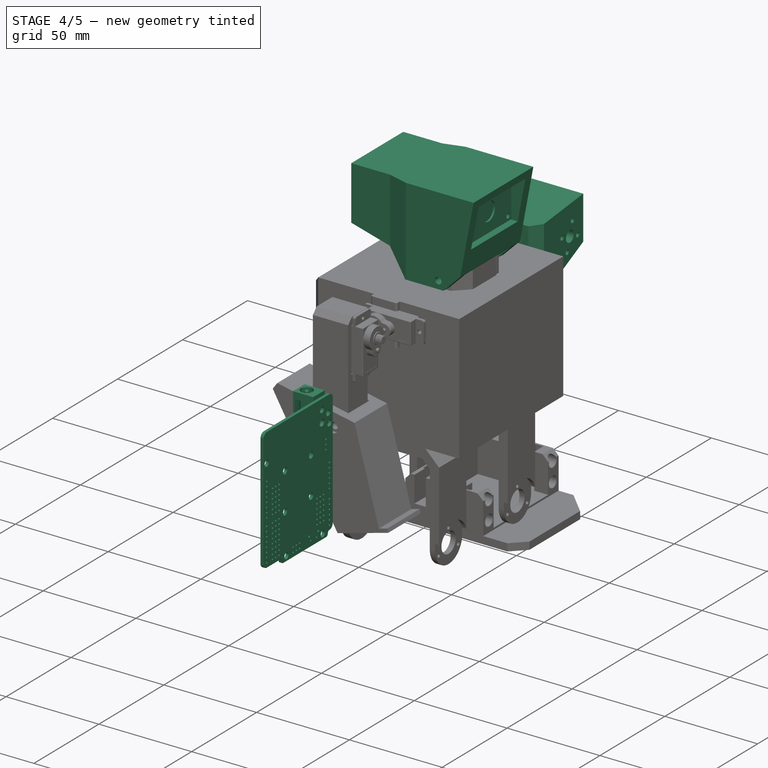
[diagram: stage 4 of 5 — iso view after this stage's code; geometry added in this stage tinted green]
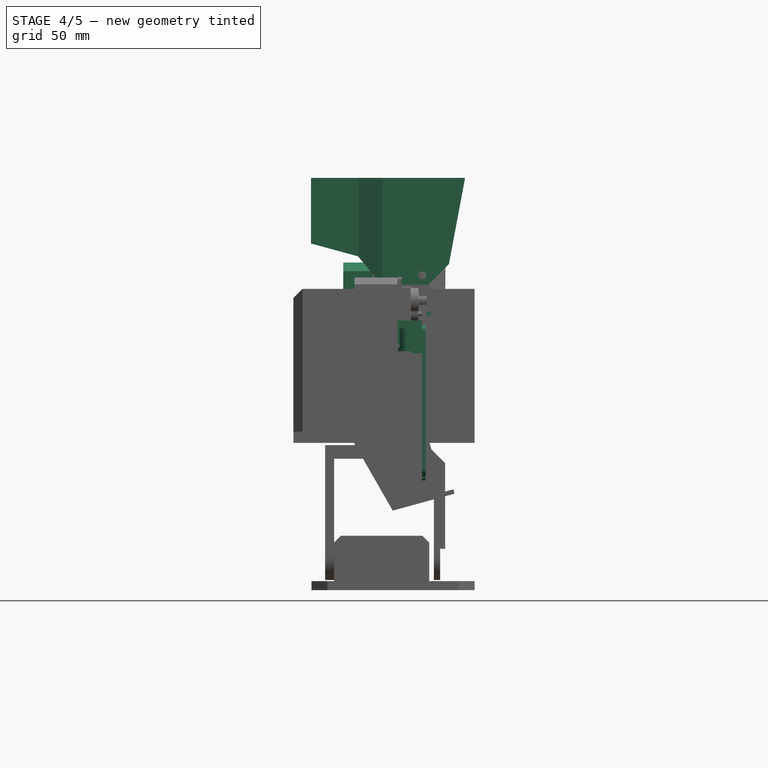
[diagram: stage 4 of 5 — front view after this stage's code; geometry added in this stage tinted green]
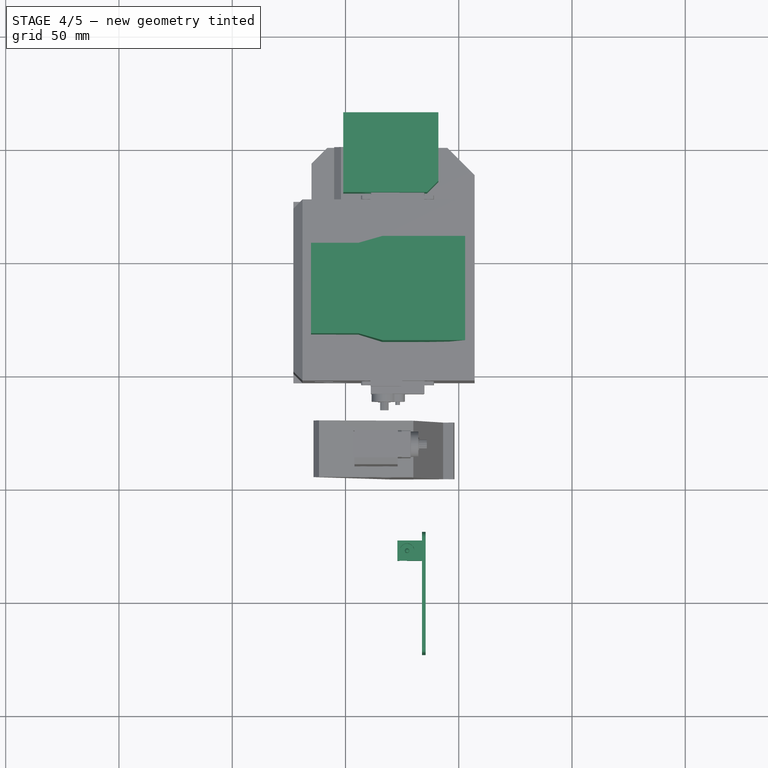
[diagram: stage 4 of 5 — top view after this stage's code; geometry added in this stage tinted green]
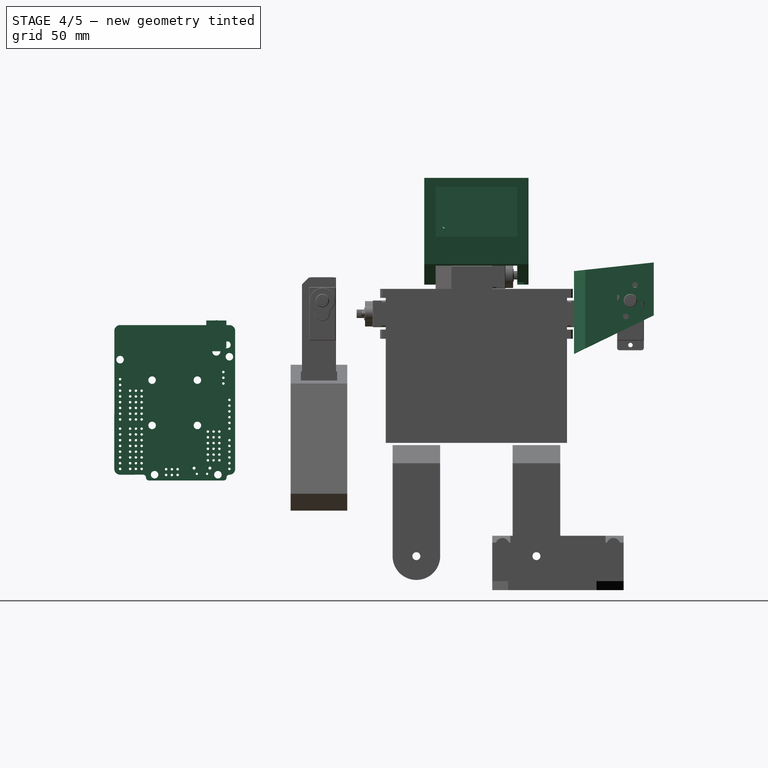
[diagram: stage 4 of 5 — right view after this stage's code; geometry added in this stage tinted green]
FEATURE [Part::Box] Box009  label="Cube009"
  Height = 5
  Length = 80
  Placement = pos=(-23,-4,63) rot=(0,0,1;0rad)
  Width = 80
FEATURE [Part::Box] Box010  label="Cube010"
  Height = 9
  Length = 7
  Placement = pos=(-1,-1,63) rot=(0,0,1;0rad)
  Width = 74
FEATURE [Part::Box] Box011  label="Cube011"
  Height = 9
  Length = 7
  Placement = pos=(47,-1,63) rot=(0,0,1;0rad)
  Width = 74
FEATURE [Part::MultiFuse] Fusion005
  Placement = pos=(44,39,98) rot=(0,1,0;1.5708rad)
  Shapes = -> [Cylinder009,Cylinder008]
FEATURE [Part::MultiFuse] Fusion008
  Placement = pos=(44,29,98) rot=(0,1,0;1.5708rad)
  Shapes = -> [Cylinder009,Cylinder008]
FEATURE [Part::MultiFuse] Fusion009
  Placement = pos=(-5,39,98) rot=(0,1,0;1.5708rad)
  Shapes = -> [Cylinder009,Cylinder008]
FEATURE [Part::MultiFuse] Fusion010
  Placement = pos=(-5,29,98) rot=(0,1,0;1.5708rad)
  Shapes = -> [Cylinder009,Cylinder008]
FEATURE [Part::Box] Box012  label="Cube012"
  Height = 9
  Length = 70
  Placement = pos=(-6,8.5,70) rot=(0,0,1;0rad)
  Width = 2
FEATURE [Part::MultiFuse] Fusion011
  Shapes = -> [Box012,Fusion009,Fusion010,Fusion008,Fusion005]
FEATURE [Part::MultiFuse] Fusion012
  Placement = pos=(0,53,0) rot=(0,0,1;0rad)
  Shapes = -> [Box012,Fusion009,Fusion010,Fusion008,Fusion005]
FEATURE [Part::MultiFuse] Fusion013
  Shapes = -> [Box009,Box011,Box010]
FEATURE [Part::Cut] Cut018
  Base = -> Fusion013
  Tool = -> Fusion012
FEATURE [Part::Cut] Cut019
  Base = -> Cut018
  Tool = -> Fusion011
FEATURE [Part::Box] Box014  label="Cube014"
  Height = 43
  Length = 41
  Placement = pos=(6,-1,59) rot=(0,0,1;0rad)
  Width = 21
FEATURE [Part::Box] Box015  label="Cube015"
  Height = 43
  Length = 41
  Placement = pos=(6,52,59) rot=(0,0,1;0rad)
  Width = 21
FEATURE [Part::Cut] Cut020
  Base = -> Cut019
  Tool = -> Box014
FEATURE [Part::Cut] Cut021
  Base = -> Cut020
  Tool = -> Box015
FEATURE [Part::Box] Box016  label="Cube016"
  Height = 12
  Length = 6
  Placement = pos=(-11.5,3,69) rot=(0,0,1;0rad)
  Width = 3
FEATURE [Part::Box] Box017  label="Cube017"
  Height = 12
  Length = 16
  Placement = pos=(-20,-1,63) rot=(0,0,1;0rad)
  Width = 74
FEATURE [Part::Box] Box018  label="Cube018"
  Height = 12
  Length = 6
  Placement = pos=(-11.5,66,69) rot=(0,0,1;0rad)
  Width = 3
FEATURE [Part::MultiFuse] Fusion014
  Shapes = -> [Cut021,Box017]
FEATURE [Part::Cut] Cut022
  Base = -> Fusion014
  Tool = -> Box016
FEATURE [Part::Cut] Cut023
  Base = -> Cut022
  Tool = -> Box018
FEATURE [Part::Cylinder] Cylinder012  label="Cylinder030"
  Angle = 360
  Height = 31
  Placement = pos=(-8.5,92,71.5) rot=(1,0,0;1.5708rad)
  Radius = 1.75
FEATURE [Part::Cut] Cut024
  Base = -> Cut023
  Tool = -> Cylinder012
FEATURE [Part::Cylinder] Cylinder013  label="Cylinder001"
  Angle = 360
  Height = 31
  Placement = pos=(-8.5,11,71.5) rot=(1,0,0;1.5708rad)
  Radius = 1.75
FEATURE [Part::Cut] Cut050
  Base = -> Cut024
  Tool = -> Cylinder013
FEATURE [Part::Box] Box032  label="Cube032"
  Height = 25
  Length = 55
  Placement = pos=(-1,20,66) rot=(0,0,1;0rad)
  Width = 32
FEATURE [Part::MultiFuse] Fusion025
  Shapes = -> [Box032,Cut050]
FEATURE [Sketcher::SketchObject] Sketch
  Placement = pos=(-22,0,0) rot=(0.57735,-0.57735,-0.57735;2.0944rad)
  sketch-geometry (4):
    g0: ArcOfCircle CenterX=-49 CenterY=111.5 CenterZ=0 NormalX=0 NormalY=0 NormalZ=1 Radius=3.5 StartAngle=9.1497e-08 EndAngle=3.14159
    g1: LineSegment StartX=-52.5 StartY=111.5 StartZ=0 EndX=-52.5 EndY=91.5 EndZ=0
    g2: LineSegment StartX=-45.5 StartY=111.5 StartZ=0 EndX=-45.5 EndY=91.5 EndZ=0
    g3: ArcOfCircle CenterX=-49 CenterY=91.5 CenterZ=0 NormalX=0 NormalY=0 NormalZ=1 Radius=3.5 StartAngle=3.14159 EndAngle=6.28319
  constraints (13):
    c: DistanceX(g-1,g0) = -49
    c: DistanceY(g-1,g0) = 111.5
    c: Radius(g0) = 3.5
    c: Vertical(g1)
    c: Vertical(g2)
    c: Coincident(g1,g0)
    c: Coincident(g2,g0)
    c: Tangent(g2,g0)
    c: Tangent(g1,g0)
    c: Coincident(g3,g1)
    c: Coincident(g3,g2)
    c: Equal(g3,g0)
    c: Distance(g3,g0) = 20
FEATURE [PartDesign::Pad] Pad
  Length = 5
  Length2 = 100
  Placement = pos=(-22,0,0) rot=(0.57735,-0.57735,-0.57735;2.0944rad)
  Reversed = true
  Sketch = -> Sketch
  Type = 0
FEATURE [Part::FeaturePython] Clone  label="Clone of Pad"  # Draft clone (typed FeaturePython)
  Objects = -> [Pad]
  Placement = pos=(-22,-20,0) rot=(0.57735,-0.57735,-0.57735;2.0944rad)
  Scale = (1,1,1)
FEATURE [Part::MultiFuse] Fusion039
  Placement = pos=(4.5,0,0) rot=(0,0,1;0rad)
  Shapes = -> [Pad,Clone]
FEATURE [Part::FeaturePython] Clone004  label="Clone of Cut080026090"  # WARN: FeaturePython — macro-defined, semantics opaque (R4)
  Placement = pos=(20.8,4,-65) rot=(0,0,-1;1.5708rad)
  Scale = (1,1,1)
FEATURE [Part::FeaturePython] Clone005  label="Clone of Fusion156"  # WARN: FeaturePython — macro-defined, semantics opaque (R4)
  Placement = pos=(20.8,4,-69) rot=(0,0,-1;1.5708rad)
  Scale = (1,1,1)
FEATURE [Part::FeaturePython] Clone006  label="Clone of Pad056"  # WARN: FeaturePython — macro-defined, semantics opaque (R4)
  Placement = pos=(-13.2,4,-69) rot=(0.57735,-0.57735,-0.57735;2.0944rad)
  Scale = (1,1,1)
FEATURE [Part::MultiFuse] Fusion045  label="servo-src"
  Placement = pos=(23,4.5,120) rot=(0,0.707107,-0.707107;3.14159rad)
  Shapes = -> [Part__Feature004,Part__Feature005]
FEATURE [Part::Cut] Cut085
  Base = -> Pad005
  Tool = -> Pad007
FEATURE [Part::Cut] Cut086
  Base = -> Cut085
  Tool = -> Cylinder056
FEATURE [Part::Cut] Cut087
  Base = -> Cut086
  Tool = -> Cylinder057
FEATURE [Part::Chamfer] Chamfer104
  Base = -> Cut087
  Edges = 1 edges r=5: [Edge10]
FEATURE [Part::Cut] Cut088
  Base = -> Chamfer104
  Tool = -> Cylinder058
FEATURE [Part::Cylinder] Cylinder059  label="Cilindro003"
  Angle = 360
  Height = 22
  Placement = pos=(20.25,-34,132.75) rot=(0,1,0;1.5708rad)
  Radius = 1.25
FEATURE [Part::Cylinder] Cylinder060  label="Cilindro004"
  Angle = 360
  Height = 22
  Placement = pos=(20.25,-30,118.75) rot=(0,1,0;1.5708rad)
  Radius = 1.25
FEATURE [Part::Cylinder] Cylinder061  label="Cilindro005"
  Angle = 360
  Height = 22
  Placement = pos=(20.25,-38,124.25) rot=(0,1,0;1.5708rad)
  Radius = 1.25
FEATURE [Part::Cylinder] Cylinder062  label="Cilindro006"
  Angle = 360
  Height = 22
  Placement = pos=(20.25,-26,127.25) rot=(0,1,0;1.5708rad)
  Radius = 1.25
FEATURE [Part::MultiFuse] Fusion046
  Shapes = -> [Cylinder059,Cylinder061,Cylinder062,Cylinder060]
FEATURE [Part::Cut] Cut089
  Base = -> Cut088
  Tool = -> Fusion047
FEATURE [Part::Cut] Cut090
  Base = -> Cut089
  Tool = -> Fusion046
FEATURE [Part::Cut] Cut091
  Base = -> Cut090
  Tool = -> Cylinder067
FEATURE [Part::Chamfer] Chamfer105  label="shoulder-src"
  Base = -> Cut091
  Edges = 1 edges r=5: [Edge33]
FEATURE [Part::FeaturePython] Clone010  label="Clone of Chamfer105"  # Draft clone (typed FeaturePython)
  Objects = -> [Chamfer105]
  Scale = (1,1,1)
FEATURE [Part::Mirroring] Part__Mirroring007008  label="Clone of Chamfer105 (Mirror #10)"
  Base = (0,0,0)
  Normal = (0,1,0)
  Placement = pos=(0,72,0) rot=(0,0,1;0rad)
  Source = -> Clone010
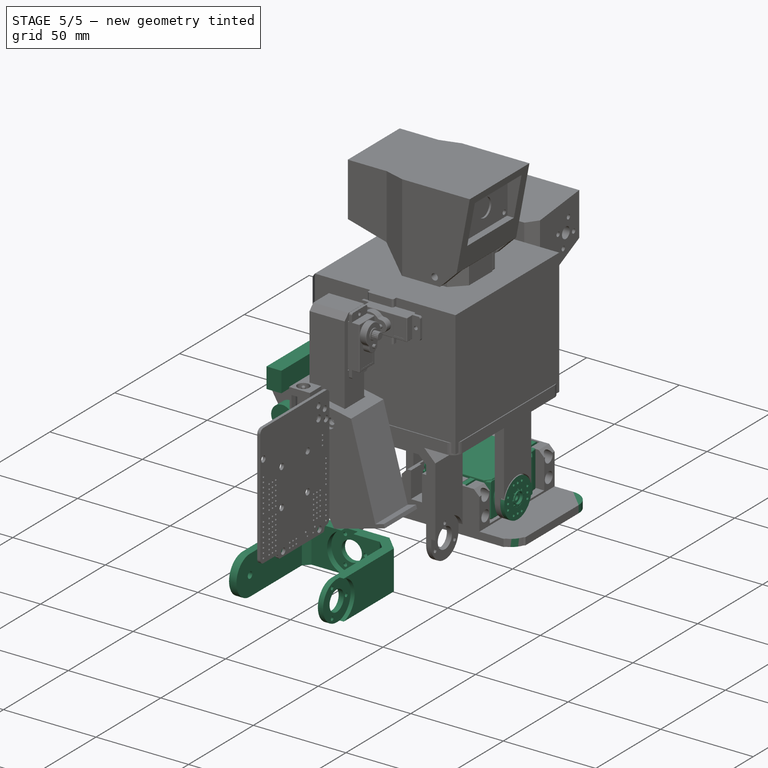
[diagram: stage 5 of 5 — iso view after this stage's code; geometry added in this stage tinted green]
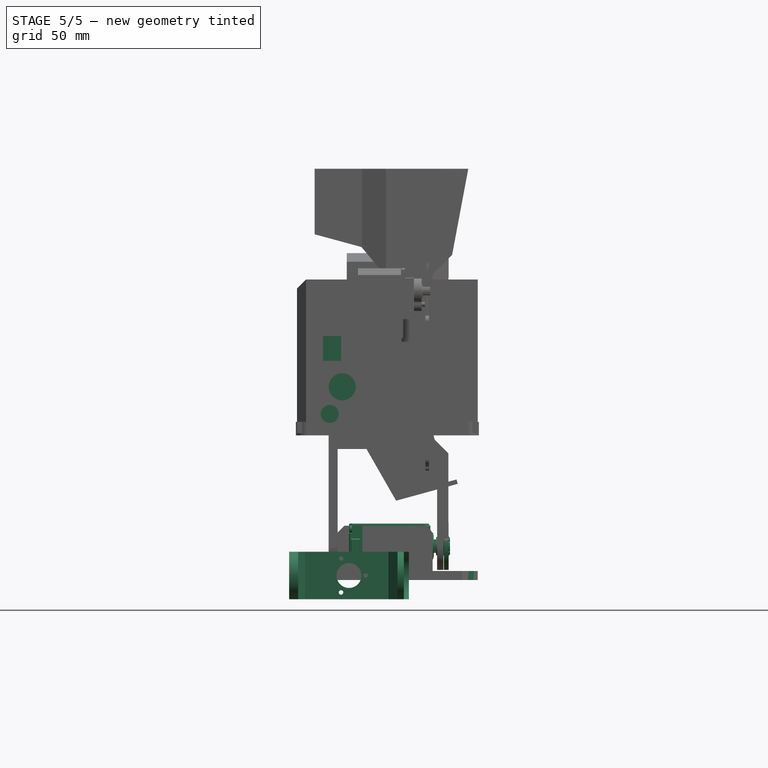
[diagram: stage 5 of 5 — front view after this stage's code; geometry added in this stage tinted green]
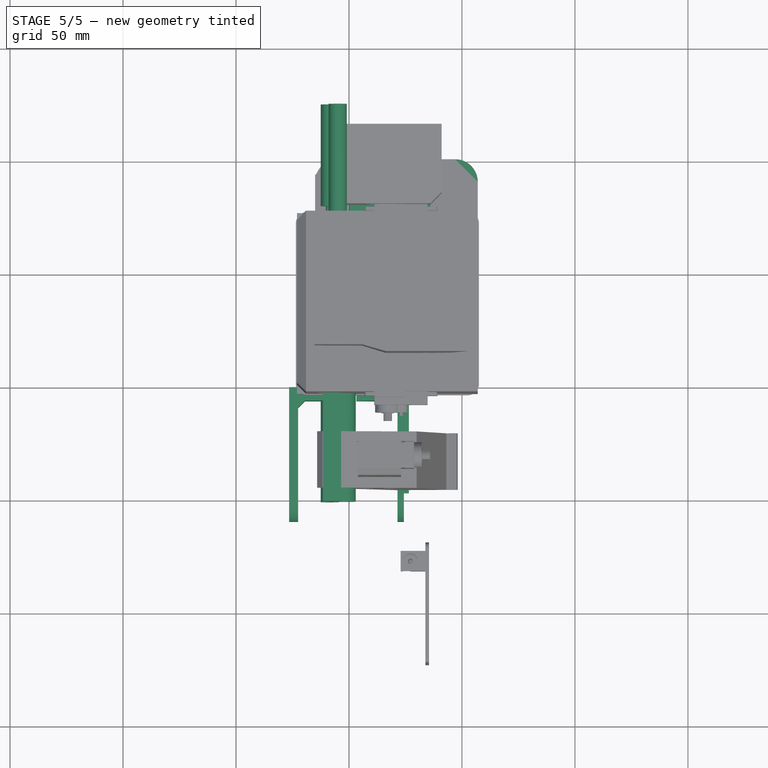
[diagram: stage 5 of 5 — top view after this stage's code; geometry added in this stage tinted green]
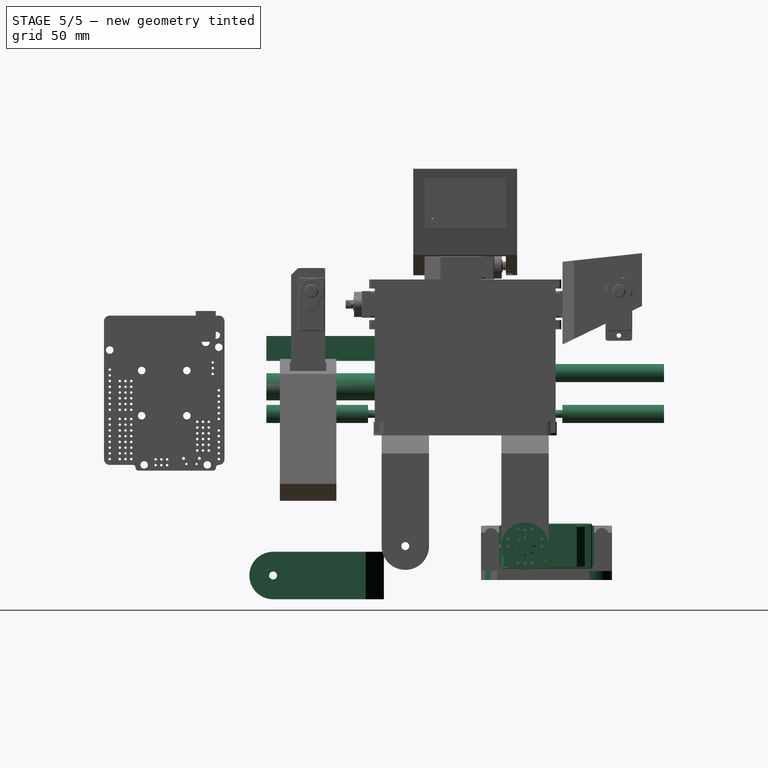
[diagram: stage 5 of 5 — right view after this stage's code; geometry added in this stage tinted green]
FEATURE [Part::Mirroring] Part__Mirroring  label="Servo-D1 (Mirror #1)"
  Base = (0,0,0)
  Normal = (0,1,0)
  Placement = pos=(0,72,0) rot=(0,0,1;0rad)
  Source = -> Part__Feature013
FEATURE [Part::Mirroring] Part__Mirroring001  label="Servo-D2 (Mirror #2)"
  Base = (0,0,0)
  Normal = (0,1,0)
  Placement = pos=(0,72,0) rot=(0,0,1;0rad)
  Source = -> Part__Feature014
FEATURE [PartDesign::Fillet] Fillet011  label="horn"
  Placement = pos=(38.5,9.5,13) rot=(0,0,-1;1.5708rad)
  Radius = 0.5
FEATURE [PartDesign::Fillet] Fillet012  label="horn001"
  Placement = pos=(16.8,9.5,62.5) rot=(-0.57735,0.57735,-0.57735;2.0944rad)
  Radius = 0.5
FEATURE [Part::Mirroring] Part__Mirroring003  label="horn (Mirror #4)"
  Base = (41.6,1.90735e-06,13)
  Normal = (0,1,-1.19209e-07)
  Placement = pos=(0,72,0) rot=(0,0,1;0rad)
  Source = -> Fillet011
FEATURE [Part::Mirroring] Part__Mirroring004  label="horn001 (Mirror #5)"
  Base = (16.8,7.62939e-06,59.3998)
  Normal = (0,1,-1.19209e-07)
  Placement = pos=(0,72,0) rot=(0,0,1;0rad)
  Source = -> Fillet012
FEATURE [Part::Mirroring] Part__Mirroring006  label="pie-I"
  Base = (0,0,0)
  Normal = (0,1,0)
  Placement = pos=(0,72,0) rot=(0,0,1;0rad)
  Source = -> Cut039
FEATURE [Part::Box] Box033  label="Cube033"
  Height = 54
  Length = 4.5
  Placement = pos=(-20,6,64) rot=(0,0,1;0rad)
  Width = 60
FEATURE [Part::Box] Box035  label="Cube035"
  Height = 68
  Length = 6
  Placement = pos=(-23.5,17,68) rot=(0,0,1;0rad)
  Width = 38
FEATURE [Part::Box] Box036  label="Cube034"
  Height = 17
  Length = 13
  Placement = pos=(-14,20,62) rot=(0,0,1;0rad)
  Width = 32
FEATURE [Part::Fillet] Fillet018002
  Base = -> Box036
  Edges = 4 edges r=5: [Edge1,Edge3,Edge5,Edge7]
FEATURE [Part::Cylinder] Cylinder  label="Cylinder083"
  Angle = 360
  Height = 31
  Placement = pos=(-49.5,29,111.5) rot=(0,1,0;1.5708rad)
  Radius = 1.75
FEATURE [Part::Cylinder] Cylinder040  label="Cylinder084"
  Angle = 360
  Height = 31
  Placement = pos=(-49.5,49,91.5) rot=(0,1,0;1.5708rad)
  Radius = 1.75
FEATURE [Part::Cylinder] Cylinder041  label="Cylinder085"
  Angle = 360
  Height = 31
  Placement = pos=(-49.5,49,111.5) rot=(0,1,0;1.5708rad)
  Radius = 1.75
FEATURE [Part::Box] Box037  label="Cube036"
  Height = 44
  Length = 61
  Placement = pos=(-9,22,66) rot=(0,0,1;0rad)
  Width = 28
FEATURE [Part::MultiFuse] Fusion026
  Shapes = -> [Fusion025,Box033]
FEATURE [Part::Cut] Cut051
  Base = -> Fusion026
  Tool = -> Fillet018002
FEATURE [Part::Box] Box038  label="Cube037"
  Height = 11
  Length = 8
  Placement = pos=(-11.5,-52,95) rot=(0,0,1;0rad)
  Width = 58
FEATURE [Part::Cylinder] Cylinder042  label="Cylinder086"
  Angle = 360
  Height = 61
  Placement = pos=(-5,124,89.6) rot=(1,0,0;1.5708rad)
  Radius = 4
FEATURE [Part::Cylinder] Cylinder043  label="Cylinder087"
  Angle = 360
  Height = 63
  Placement = pos=(-3,11,83.5) rot=(1,0,0;1.5708rad)
  Radius = 6
FEATURE [Part::Box] Box039  label="Cube038"
  Height = 66
  Length = 76
  Placement = pos=(-21,-2,63) rot=(0,0,1;0rad)
  Width = 76
FEATURE [Part::Cylinder] Cylinder044  label="Cylinder088"
  Angle = 360
  Height = 23
  Placement = pos=(-8.5,1,71.5) rot=(1,0,0;1.5708rad)
  Radius = 1.75
FEATURE [Part::Cylinder] Cylinder045  label="Cylinder089"
  Angle = 360
  Height = 31
  Placement = pos=(-8.5,94,71.5) rot=(1,0,0;1.5708rad)
  Radius = 1.75
FEATURE [Part::Fillet] Fillet018007
  Base = -> Box039
  Edges = 8 edges r=3: [Edge1,Edge2,Edge3,Edge5,Edge6,Edge7,Edge10,Edge12]
FEATURE [Part::Box] Box040  label="Cube039"
  Height = 6
  Length = 81
  Placement = pos=(-23.5,-4.5,63) rot=(0,0,1;0rad)
  Width = 81
FEATURE [Part::Fillet] Fillet018008
  Base = -> Box040
  Edges = 4 edges r=5: [Edge1,Edge3,Edge5,Edge7]
  Placement = pos=(0,0,-1) rot=(0,0,1;0rad)
FEATURE [Part::Cylinder] Cylinder046  label="Cylinder090"
  Angle = 360
  Height = 45
  Placement = pos=(-8.5,-7,71.5) rot=(1,0,0;1.5708rad)
  Radius = 4
FEATURE [Part::Cylinder] Cylinder047  label="Cylinder091"
  Angle = 360
  Height = 45
  Placement = pos=(-8.5,124,71.5) rot=(1,0,0;1.5708rad)
  Radius = 4
FEATURE [Part::MultiFuse] Fusion033
  Shapes = -> [Fillet018007,Fillet018008]
FEATURE [Part::MultiFuse] Fusion034  label="corte-positivo"
  Shapes = -> [Fusion033,Cylinder042,Cylinder047,Cylinder045,Cylinder046,Cylinder043,Box038,Cylinder044]
FEATURE [Part::Cylinder] Cylinder053  label="Cylinder093"
  Angle = 360
  Height = 31
  Placement = pos=(-49.5,29,91.5) rot=(0,1,0;1.5708rad)
  Radius = 1.75
FEATURE [Part::MultiFuse] Fusion038
  Placement = pos=(14,0,0) rot=(0,0,1;0rad)
  Shapes = -> [Cylinder053,Cylinder040,Cylinder041,Cylinder]
FEATURE [App::DocumentObjectGroup] Group005  label="aux"
  Group = -> [Fusion034]
FEATURE [Part::Cut] Cut066
  Base = -> Cut051
  Tool = -> Box037
FEATURE [Part::Chamfer] Chamfer003
  Base = -> Cut066
  Edges = 1 edges r=3: [Edge1]
FEATURE [Part::MultiFuse] Fusion040
  Shapes = -> [Chamfer003,Fusion039]
FEATURE [Part::Cut] Cut067
  Base = -> Fusion040
  Tool = -> Fusion038
FEATURE [Part::Cut] Cut068
  Base = -> Cut067
  Tool = -> Box035
FEATURE [Sketcher::SketchObject] Sketch001  label="leg-sketch-1"
  Placement = pos=(0,0,0) rot=(0.57735,0.57735,0.57735;2.0944rad)
  sketch-geometry (5):
    g0: LineSegment StartX=-49 StartY=10.5 StartZ=0 EndX=0 EndY=10.5 EndZ=0
    g1: LineSegment StartX=0 StartY=10.5 StartZ=0 EndX=0 EndY=-10.5 EndZ=0
    g2: LineSegment StartX=0 StartY=-10.5 StartZ=0 EndX=-49 EndY=-10.5 EndZ=0
    g3: LineSegment [constr] StartX=-49 StartY=-10.5 StartZ=0 EndX=-49 EndY=10.5 EndZ=0
    g4: ArcOfCircle CenterX=-49 CenterY=0 CenterZ=0 NormalX=0 NormalY=0 NormalZ=1 Radius=10.5 StartAngle=1.5708 EndAngle=4.71239
  constraints (15):
    c: Coincident(g0,g1)
    c: Coincident(g1,g2)
    c: Coincident(g2,g3)
    c: Coincident(g3,g0)
    c: Horizontal(g0)
    c: Horizontal(g2)
    c: Vertical(g1)
    c: Vertical(g3)
    c: PointOnObject(g4,g3)
    c: Coincident(g4,g0)
    c: Coincident(g4,g2)
    c: PointOnObject(g4,g-1)
    c: PointOnObject(g0,g-2)
    c: DistanceX(g0) = 49
    c: DistanceY(g1) = -21
FEATURE [PartDesign::Pad] Pad001  label="leg-block-1"
  Length = 53
  Length2 = 100
  Midplane = true
  Placement = pos=(0,0,0) rot=(0.57735,0.57735,0.57735;2.0944rad)
  Sketch = -> Sketch001
  Type = 0
FEATURE [Sketcher::SketchObject] Sketch002  label="leg-top-sketch"
  ExternalGeometry = -> [Pad001]
  Placement = pos=(0,0,10.5) rot=(0,0,-1;1.5708rad)
  Support = -> Pad001 [Face1]
  sketch-geometry (9):
    g0: LineSegment StartX=64 StartY=21.5 StartZ=0 EndX=10 EndY=21.5 EndZ=0
    g1: LineSegment StartX=6 StartY=17.5 StartZ=0 EndX=6 EndY=-19.5 EndZ=0
    g2: LineSegment StartX=9 StartY=-22.5 StartZ=0 EndX=64 EndY=-22.5 EndZ=0
    g3: LineSegment StartX=64 StartY=-22.5 StartZ=0 EndX=64 EndY=21.5 EndZ=0
    g4: LineSegment StartX=6 StartY=17.5 StartZ=0 EndX=10 EndY=21.5 EndZ=0
    g5: LineSegment [constr] StartX=6 StartY=17.5 StartZ=0 EndX=6 EndY=21.5 EndZ=0
    g6: LineSegment StartX=6 StartY=-19.5 StartZ=0 EndX=9 EndY=-22.5 EndZ=0
    g7: LineSegment [constr] StartX=9 StartY=-22.5 StartZ=0 EndX=6 EndY=-22.5 EndZ=0
    g8: LineSegment [constr] StartX=6 StartY=-22.5 StartZ=0 EndX=6 EndY=-19.5 EndZ=0
  constraints (26):
    c: Coincident(g2,g3)
    c: Coincident(g3,g0)
    c: Horizontal(g0)
    c: Horizontal(g2)
    c: Vertical(g1)
    c: Vertical(g3)
    c: DistanceY(g-3,g5) = -5
    c: DistanceY(g7,g-4) = -4
    c: Angle(g-2,g4) = 2.35619
    c: Coincident(g1,g4)
    c: Coincident(g5,g1)
    c: Vertical(g5)
    c: DistanceY(g1,g7) = -40
    c: DistanceX(g5,g-3) = -6
    c: Coincident(g0,g4)
    c: PointOnObject(g5,g0)
    c: DistanceX(g-3,g0) = 15
    c: Coincident(g2,g6)
    c: Coincident(g7,g2)
    c: Horizontal(g7)
    c: DistanceX(g7) = -3
    c: Coincident(g1,g6)
    c: Coincident(g8,g7)
    c: Coincident(g8,g1)
    c: Equal(g8,g7)
    c: Vertical(g8)
FEATURE [PartDesign::Pocket] Pocket  label="leg-block-2"
  Length = 5
  Placement = pos=(0,0,0) rot=(0.57735,0.57735,0.57735;2.0944rad)
  Sketch = -> Sketch002
  Type = 1
FEATURE [Sketcher::SketchObject] Sketch003  label="ankle-rounded-horn-sketch"
  ExternalGeometry = -> [Pocket]
  Placement = pos=(26.5,0,0) rot=(0.57735,0.57735,0.57735;2.0944rad)
  Support = -> Pocket [Face4]
  sketch-geometry (1):
    g0: Circle CenterX=-49 CenterY=0 CenterZ=0 NormalX=0 NormalY=0 NormalZ=1 Radius=10.75
  constraints (2):
    c: Coincident(g0,g-3)
    c: Radius(g0) = 10.75
FEATURE [PartDesign::Pocket] Pocket001  label="ankle-rounded-horn-cutout"
  Length = 2.2
  Placement = pos=(0,0,0) rot=(0.57735,0.57735,0.57735;2.0944rad)
  Sketch = -> Sketch003
  Type = 0
FEATURE [Sketcher::SketchObject] Sketch004  label="ankle-rear-shaft-drill-sketch"
  ExternalGeometry = -> [Pocket001]
  Placement = pos=(-26.5,0,0) rot=(0.57735,0.57735,-0.57735;4.18879rad)
  Support = -> Pocket001 [Face2]
  sketch-geometry (1):
    g0: Circle CenterX=-49 CenterY=0 CenterZ=0 NormalX=0 NormalY=0 NormalZ=1 Radius=1.75
  constraints (2):
    c: Coincident(g0,g-3)
    c: Radius(g0) = 1.75
FEATURE [PartDesign::Pocket] Pocket002  label="ankle-rear-shaft-drill"
  Length = 0
  Placement = pos=(0,0,0) rot=(0.57735,0.57735,0.57735;2.0944rad)
  Sketch = -> Sketch004
  Type = 2
FEATURE [Sketcher::SketchObject] Sketch005  label="hip-rounded-horn-cutout-sketch"
  Placement = pos=(0,-6,0) rot=(-0.57735,-0.57735,0.57735;4.18879rad)
  Support = -> Pocket002 [Face10]
  sketch-geometry (1):
    g0: Circle CenterX=0 CenterY=0 CenterZ=0 NormalX=0 NormalY=0 NormalZ=1 Radius=11
  constraints (2):
    c: Coincident(g0,g-1)
    c: Radius(g0) = 11
FEATURE [PartDesign::Pocket] Pocket003  label="hip-rounded-horn-cutout"
  Length = 3.3
  Placement = pos=(0,0,0) rot=(0.57735,0.57735,0.57735;2.0944rad)
  Sketch = -> Sketch005
  Type = 0
FEATURE [Sketcher::SketchObject] Sketch006  label="horn-side-chamfer-sketch"
  ExternalGeometry = -> [Pocket003]
  Placement = pos=(0,0,10.5) rot=(0,0,-1;1.5708rad)
  Support = -> Pocket003 [Face1]
  sketch-geometry (3):
    g0: LineSegment StartX=0 StartY=18.5 StartZ=0 EndX=8 EndY=26.5 EndZ=0
    g1: LineSegment StartX=0 StartY=18.5 StartZ=0 EndX=0 EndY=26.5 EndZ=0
    g2: LineSegment StartX=0 StartY=26.5 StartZ=0 EndX=8 EndY=26.5 EndZ=0
  constraints (8):
    c: PointOnObject(g0,g-2)
    c: PointOnObject(g0,g-3)
    c: Angle(g-2,g0) = 2.35619
    c: DistanceY(g-3,g0) = -8
    c: Coincident(g0,g1)
    c: Coincident(g1,g-3)
    c: Coincident(g1,g2)
    c: Coincident(g2,g0)
FEATURE [PartDesign::Pocket] Pocket004  label="horn-side-chamfer"
  Length = 5
  Placement = pos=(0,0,0) rot=(0.57735,0.57735,0.57735;2.0944rad)
  Sketch = -> Sketch006
  Type = 1
FEATURE [Part::Cylinder] Cylinder054  label="servo-shaft-drill"
  Angle = 360
  Height = 20
  Placement = pos=(0,10,0) rot=(1,0,0;1.5708rad)
  Radius = 5.5
FEATURE [Part::Cylinder] Cylinder055  label="servo-horn-small-drill-master"
  Angle = 360
  Height = 20
  Placement = pos=(-3.5,10,7.5) rot=(1,0,0;1.5708rad)
  Radius = 1
FEATURE [Part::FeaturePython] Clone001  label="Clone of servo-horn-small-drill-master"  # Draft clone (typed FeaturePython)
  Objects = -> [Cylinder055]
  Placement = pos=(7.35,10,-2.33815e-06) rot=(1,0,0;1.5708rad)
  Scale = (1,1,1)
FEATURE [Part::FeaturePython] Clone002  label="Clone of servo-horn-small-drill-master001"  # Draft clone (typed FeaturePython)
  Objects = -> [Cylinder055]
  Placement = pos=(-3.5,10,-7.5) rot=(1,0,0;1.5708rad)
  Scale = (1,1,1)
FEATURE [Part::MultiFuse] Fusion041  label="servo-Drills-block1-master"
  Shapes = -> [Clone001,Clone002,Cylinder055,Cylinder054]
FEATURE [Part::FeaturePython] Clone003  label="Clone of servo-Drills-block1-master"  # Draft clone (typed FeaturePython)
  Objects = -> [Fusion041]
  Placement = pos=(22,-49,6.96015e-06) rot=(0,0,1;1.5708rad)
  Scale = (1,1,1)
FEATURE [Part::MultiFuse] Fusion042  label="Servo-horn-drills"
  Shapes = -> [Fusion041,Clone003]
FEATURE [Part::Cut] Cut070  label="Leg"
  Base = -> Pocket004
  Tool = -> Fusion042
FEATURE [App::DocumentObjectGroup] Group007  label="Leg-src"
  Group = -> [Pad001,Pocket,Pocket001,Pocket002,Pocket003,Cut070]
FEATURE [App::DocumentObjectGroup] Group006  label="new-src"
  Group = -> [Group007]
FEATURE [Part::Feature] Fusion043  label="soft-drink-can"
  Placement = pos=(0,171,-2) rot=(0,0,-1;1.5708rad)
  shape: bbox 66.1 x 66.1 x 115.2 mm, 53 faces (baked)
FEATURE [App::DocumentObjectGroup] Group018  label="develop"
  Group = -> [Group006]
FEATURE [Part::Fillet] Fillet018013  label="prechassis"
  Base = -> Cut068
  Edges = 4 edges r=3: [Edge81,Edge84,Edge231,Edge247]
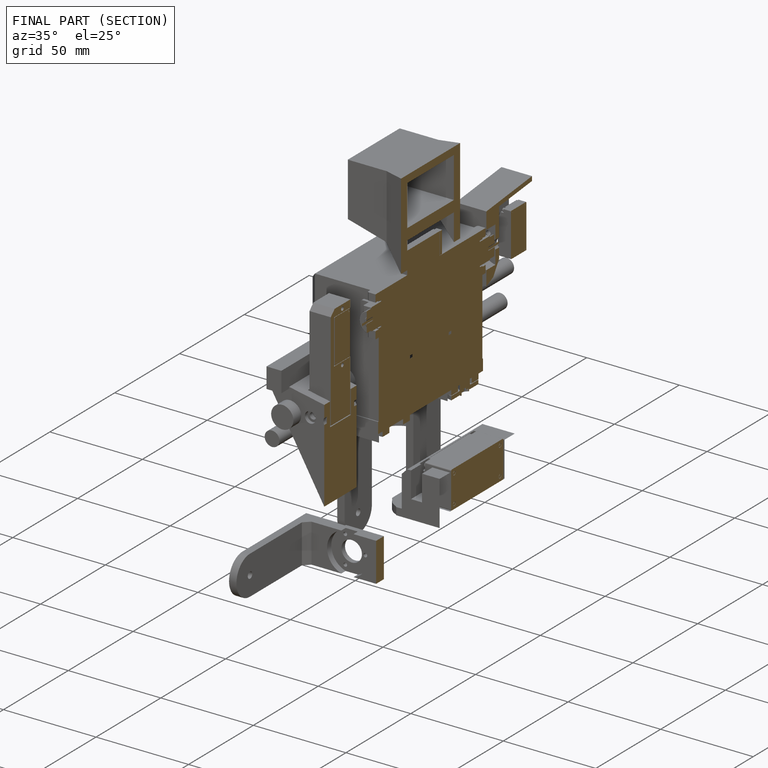
[diagram: finished part — half-section view (interior)]
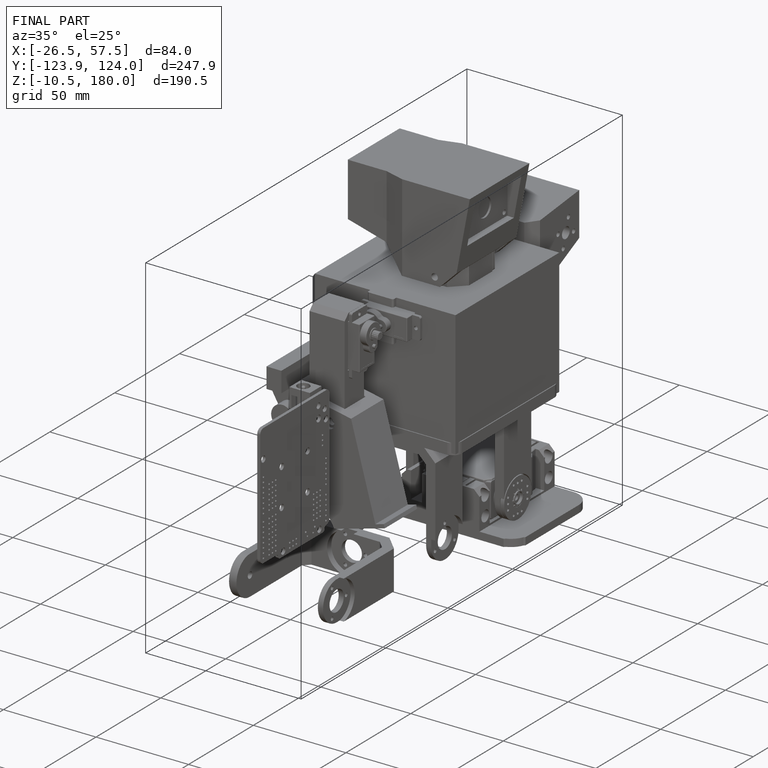
[diagram: finished part — iso view with bounding-box wireframe]
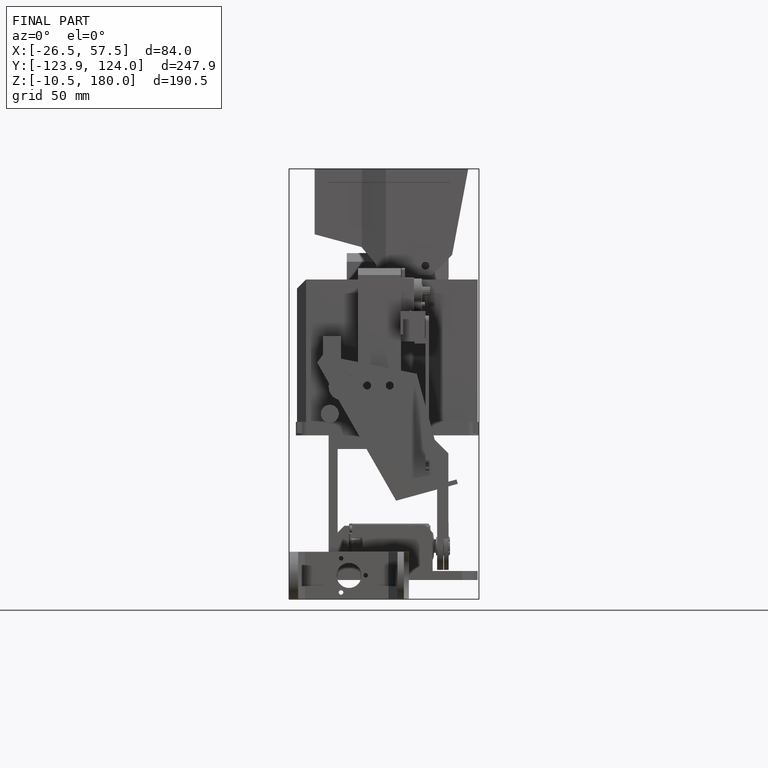
[diagram: finished part — front view with bounding-box wireframe]
